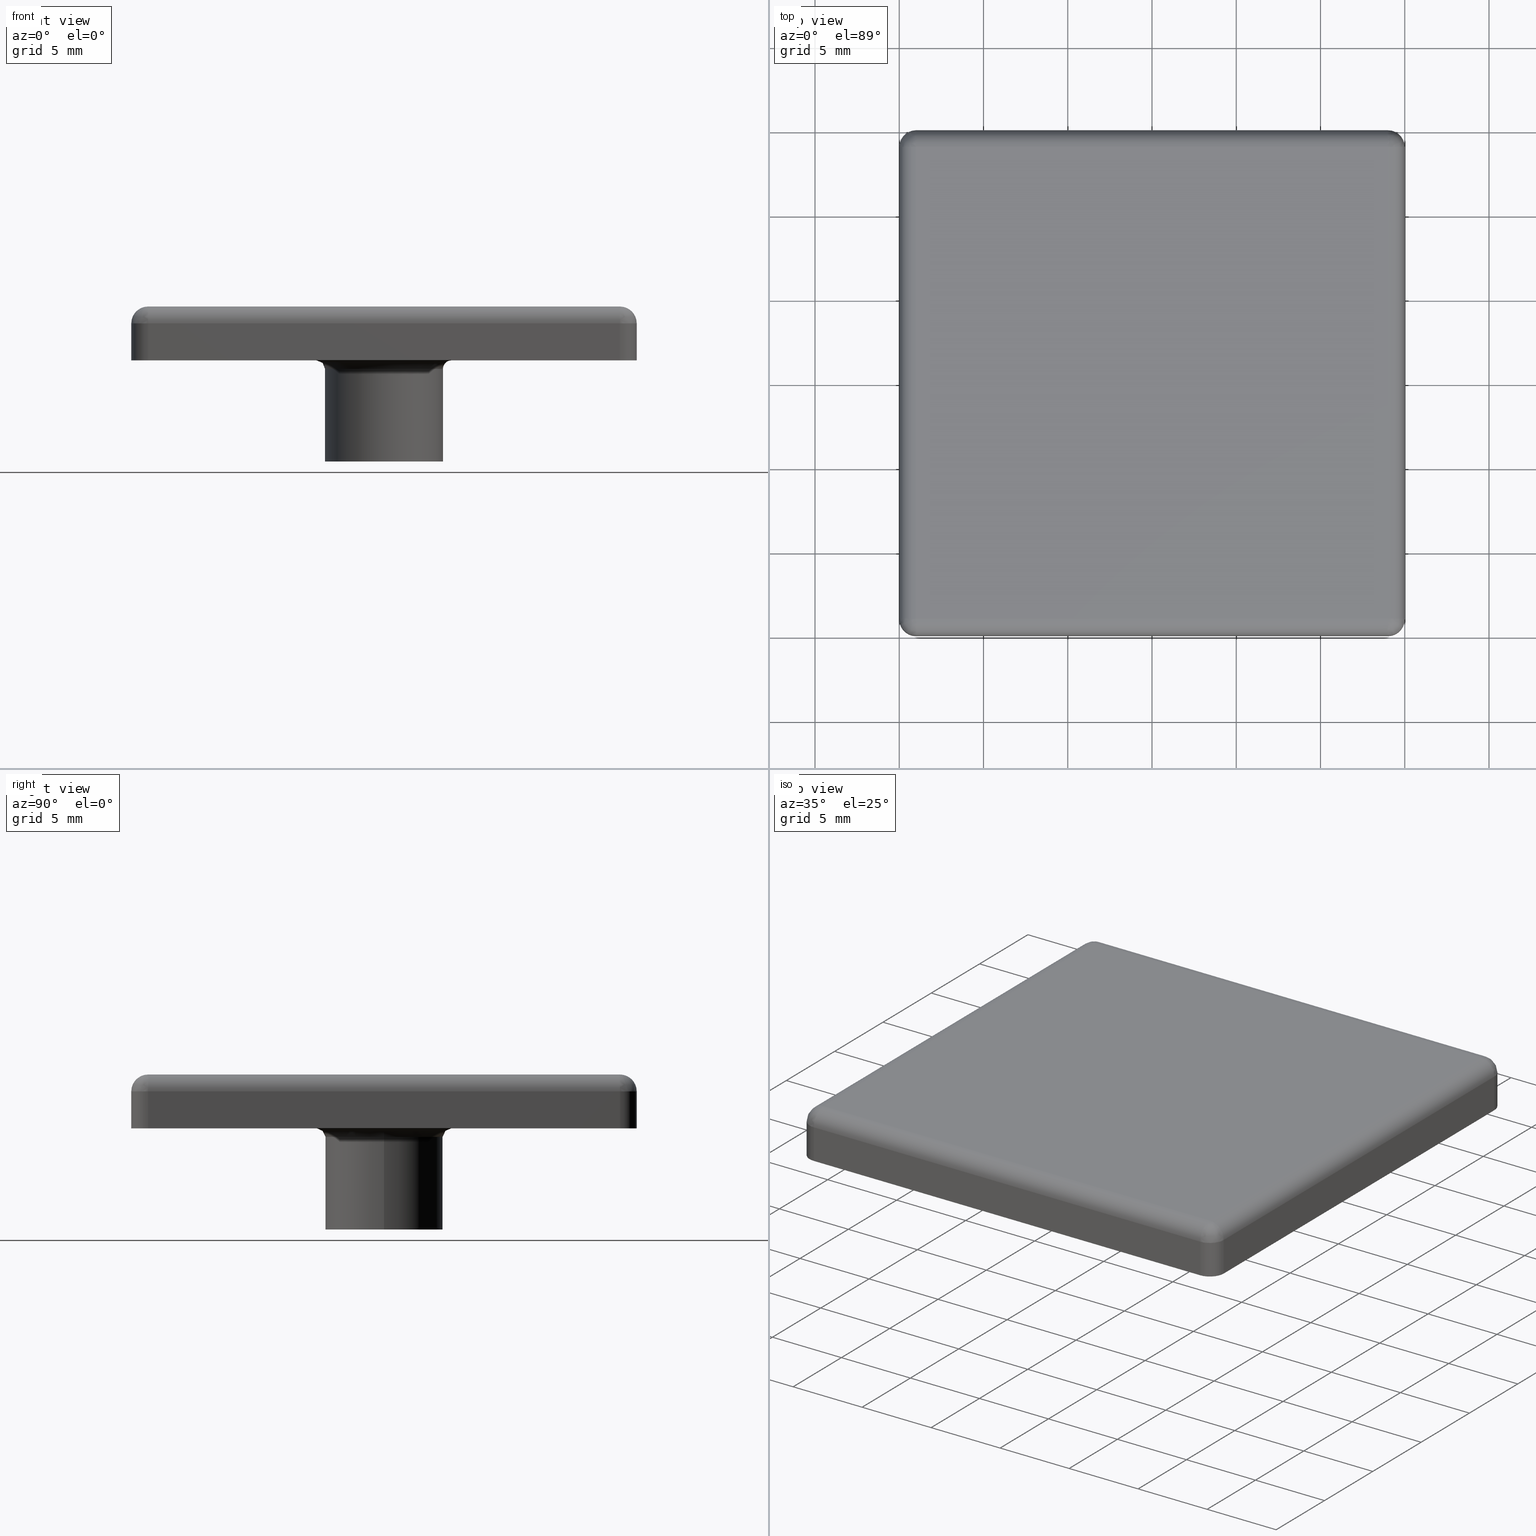
[diagram: canonical four-view strip — front | top / right | iso, engineering-drawing reading convention]
A machine part, canonical four-view strip (front | top / right | iso — engineering-drawing reading convention). The complete STEP part file that produces these views, byte-faithful:
ISO-10303-21;
HEADER;
/****************************************************************
 * Generated by software with PDE/Lib inside                    *
 * PDElib Version v4.4, created Mon 02/23/2004                  *
 * International Technegroup Inc. (www.iti-oh.com)              *
 ****************************************************************/
FILE_DESCRIPTION(('STEP AP203'),'2;1');
FILE_NAME('18.012.00.stp','2011-09-08T18:05:19',(''),(''),'2009.3.110','THINKDESIGN','');
FILE_SCHEMA(('CONFIG_CONTROL_DESIGN'));
ENDSEC;
DATA;
#2=CARTESIAN_POINT('',(14.0,14.000000000033310,0.0));
#3=DIRECTION('',(0.0,0.0,-1.0));
#4=DIRECTION('',(0.0,1.0,0.0));
#5=AXIS2_PLACEMENT_3D('',#2,#3,#4);
#6=CYLINDRICAL_SURFACE('',#5,1.0);
#7=CARTESIAN_POINT('',(14.0,15.000000000033310,0.0));
#8=VERTEX_POINT('',#7);
#9=CARTESIAN_POINT('',(14.0,15.000000000033310,2.200000000000000));
#10=VERTEX_POINT('',#9);
#11=CARTESIAN_POINT('',(14.0,15.000000000033310,0.0));
#12=DIRECTION('',(0.0,0.0,1.0));
#13=VECTOR('',#12,2.200000000000000);
#14=LINE('',#11,#13);
#15=EDGE_CURVE('',#8,#10,#14,.T.);
#16=ORIENTED_EDGE('',*,*,#15,.T.);
#17=CARTESIAN_POINT('',(15.0,14.000000000033310,2.200000000000000));
#18=VERTEX_POINT('',#17);
#19=CARTESIAN_POINT('',(14.0,14.000000000033310,2.200000000000000));
#20=DIRECTION('',(0.0,0.0,-1.0));
#21=DIRECTION('',(0.0,1.0,0.0));
#22=AXIS2_PLACEMENT_3D('',#19,#20,#21);
#23=CIRCLE('',#22,1.0);
#24=EDGE_CURVE('',#10,#18,#23,.T.);
#25=ORIENTED_EDGE('',*,*,#24,.T.);
#26=CARTESIAN_POINT('',(15.0,14.000000000033310,0.0));
#27=VERTEX_POINT('',#26);
#28=CARTESIAN_POINT('',(15.0,14.000000000033310,0.0));
#29=DIRECTION('',(0.0,0.0,1.0));
#30=VECTOR('',#29,2.200000000000000);
#31=LINE('',#28,#30);
#32=EDGE_CURVE('',#27,#18,#31,.T.);
#33=ORIENTED_EDGE('',*,*,#32,.F.);
#34=CARTESIAN_POINT('',(14.0,14.000000000033310,0.0));
#35=DIRECTION('',(0.0,0.0,-1.0));
#36=DIRECTION('',(0.0,1.0,0.0));
#37=AXIS2_PLACEMENT_3D('',#34,#35,#36);
#38=CIRCLE('',#37,1.0);
#39=EDGE_CURVE('',#8,#27,#38,.T.);
#40=ORIENTED_EDGE('',*,*,#39,.F.);
#41=EDGE_LOOP('',(#16,#25,#33,#40));
#42=FACE_OUTER_BOUND('',#41,.T.);
#43=ADVANCED_FACE('',(#42),#6,.T.);
#44=CARTESIAN_POINT('',(-18.000001016313220,-18.000001016273252,3.200000000000000));
#45=DIRECTION('',(0.0,0.0,1.0));
#46=DIRECTION('',(1.0,0.0,0.0));
#47=AXIS2_PLACEMENT_3D('',#44,#45,#46);
#48=PLANE('',#47);
#49=CARTESIAN_POINT('',(14.0,-13.999999999966697,3.200000000000000));
#50=VERTEX_POINT('',#49);
#51=CARTESIAN_POINT('',(14.0,14.000000000033310,3.200000000000000));
#52=VERTEX_POINT('',#51);
#53=CARTESIAN_POINT('',(14.0,-13.999999999966697,3.200000000000000));
#54=DIRECTION('',(0.0,1.0,0.0));
#55=VECTOR('',#54,28.000000000000007);
#56=LINE('',#53,#55);
#57=EDGE_CURVE('',#50,#52,#56,.T.);
#58=ORIENTED_EDGE('',*,*,#57,.T.);
#59=CARTESIAN_POINT('',(-13.999999999999996,14.000000000033303,3.200000000000000));
#60=VERTEX_POINT('',#59);
#61=CARTESIAN_POINT('',(14.0,14.000000000033310,3.200000000000000));
#62=DIRECTION('',(-1.0,0.0,0.0));
#63=VECTOR('',#62,28.0);
#64=LINE('',#61,#63);
#65=EDGE_CURVE('',#52,#60,#64,.T.);
#66=ORIENTED_EDGE('',*,*,#65,.T.);
#67=CARTESIAN_POINT('',(-14.0,-13.999999999966697,3.200000000000000));
#68=VERTEX_POINT('',#67);
#69=CARTESIAN_POINT('',(-13.999999999999996,14.000000000033303,3.200000000000000));
#70=DIRECTION('',(0.0,-1.0,0.0));
#71=VECTOR('',#70,28.0);
#72=LINE('',#69,#71);
#73=EDGE_CURVE('',#60,#68,#72,.T.);
#74=ORIENTED_EDGE('',*,*,#73,.T.);
#75=CARTESIAN_POINT('',(-14.0,-13.999999999966697,3.200000000000000));
#76=DIRECTION('',(1.0,0.0,0.0));
#77=VECTOR('',#76,28.0);
#78=LINE('',#75,#77);
#79=EDGE_CURVE('',#68,#50,#78,.T.);
#80=ORIENTED_EDGE('',*,*,#79,.T.);
#81=EDGE_LOOP('',(#58,#66,#74,#80));
#82=FACE_OUTER_BOUND('',#81,.T.);
#83=ADVANCED_FACE('',(#82),#48,.T.);
#84=CARTESIAN_POINT('',(15.0,15.000000000033310,0.0));
#85=DIRECTION('',(0.0,1.0,0.0));
#86=DIRECTION('',(-1.0,0.0,0.0));
#87=AXIS2_PLACEMENT_3D('',#84,#85,#86);
#88=PLANE('',#87);
#89=CARTESIAN_POINT('',(-13.999999999999996,15.000000000033303,0.0));
#90=VERTEX_POINT('',#89);
#91=CARTESIAN_POINT('',(14.0,15.000000000033310,0.0));
#92=DIRECTION('',(-1.0,0.0,0.0));
#93=VECTOR('',#92,27.999999999999996);
#94=LINE('',#91,#93);
#95=EDGE_CURVE('',#8,#90,#94,.T.);
#96=ORIENTED_EDGE('',*,*,#95,.T.);
#97=CARTESIAN_POINT('',(-13.999999999999996,15.000000000033303,2.200000000000000));
#98=VERTEX_POINT('',#97);
#99=CARTESIAN_POINT('',(-13.999999999999996,15.000000000033303,0.0));
#100=DIRECTION('',(0.0,0.0,1.0));
#101=VECTOR('',#100,2.200000000000000);
#102=LINE('',#99,#101);
#103=EDGE_CURVE('',#90,#98,#102,.T.);
#104=ORIENTED_EDGE('',*,*,#103,.T.);
#105=CARTESIAN_POINT('',(14.0,15.000000000033310,2.200000000000000));
#106=DIRECTION('',(-1.0,0.0,0.0));
#107=VECTOR('',#106,27.999999999999996);
#108=LINE('',#105,#107);
#109=EDGE_CURVE('',#10,#98,#108,.T.);
#110=ORIENTED_EDGE('',*,*,#109,.F.);
#111=ORIENTED_EDGE('',*,*,#15,.F.);
#112=EDGE_LOOP('',(#96,#104,#110,#111));
#113=FACE_OUTER_BOUND('',#112,.T.);
#114=ADVANCED_FACE('',(#113),#88,.T.);
#115=CARTESIAN_POINT('',(-13.999999999999996,14.000000000033303,0.0));
#116=DIRECTION('',(0.0,0.0,-1.0));
#117=DIRECTION('',(-1.0,0.0,0.0));
#118=AXIS2_PLACEMENT_3D('',#115,#116,#117);
#119=CYLINDRICAL_SURFACE('',#118,1.0);
#120=CARTESIAN_POINT('',(-14.999999999999996,14.000000000033303,0.0));
#121=VERTEX_POINT('',#120);
#122=CARTESIAN_POINT('',(-14.999999999999996,14.000000000033303,2.200000000000000));
#123=VERTEX_POINT('',#122);
#124=CARTESIAN_POINT('',(-14.999999999999996,14.000000000033303,0.0));
#125=DIRECTION('',(0.0,0.0,1.0));
#126=VECTOR('',#125,2.200000000000000);
#127=LINE('',#124,#126);
#128=EDGE_CURVE('',#121,#123,#127,.T.);
#129=ORIENTED_EDGE('',*,*,#128,.T.);
#130=CARTESIAN_POINT('',(-13.999999999999996,14.000000000033303,2.200000000000000));
#131=DIRECTION('',(0.0,0.0,-1.0));
#132=DIRECTION('',(-1.0,0.0,0.0));
#133=AXIS2_PLACEMENT_3D('',#130,#131,#132);
#134=CIRCLE('',#133,1.0);
#135=EDGE_CURVE('',#123,#98,#134,.T.);
#136=ORIENTED_EDGE('',*,*,#135,.T.);
#137=ORIENTED_EDGE('',*,*,#103,.F.);
#138=CARTESIAN_POINT('',(-13.999999999999996,14.000000000033303,0.0));
#139=DIRECTION('',(0.0,0.0,-1.0));
#140=DIRECTION('',(-1.0,0.0,0.0));
#141=AXIS2_PLACEMENT_3D('',#138,#139,#140);
#142=CIRCLE('',#141,1.0);
#143=EDGE_CURVE('',#121,#90,#142,.T.);
#144=ORIENTED_EDGE('',*,*,#143,.F.);
#145=EDGE_LOOP('',(#129,#136,#137,#144));
#146=FACE_OUTER_BOUND('',#145,.T.);
#147=ADVANCED_FACE('',(#146),#119,.T.);
#148=CARTESIAN_POINT('',(-14.999999999999996,15.000000000033303,0.0));
#149=DIRECTION('',(-1.0,0.0,0.0));
#150=DIRECTION('',(0.0,-1.0,0.0));
#151=AXIS2_PLACEMENT_3D('',#148,#149,#150);
#152=PLANE('',#151);
#153=CARTESIAN_POINT('',(-15.0,-13.999999999966697,0.0));
#154=VERTEX_POINT('',#153);
#155=CARTESIAN_POINT('',(-14.999999999999996,14.000000000033303,0.0));
#156=DIRECTION('',(0.0,-1.0,0.0));
#157=VECTOR('',#156,28.0);
#158=LINE('',#155,#157);
#159=EDGE_CURVE('',#121,#154,#158,.T.);
#160=ORIENTED_EDGE('',*,*,#159,.T.);
#161=CARTESIAN_POINT('',(-15.0,-13.999999999966697,2.200000000000000));
#162=VERTEX_POINT('',#161);
#163=CARTESIAN_POINT('',(-15.0,-13.999999999966697,0.0));
#164=DIRECTION('',(0.0,0.0,1.0));
#165=VECTOR('',#164,2.200000000000000);
#166=LINE('',#163,#165);
#167=EDGE_CURVE('',#154,#162,#166,.T.);
#168=ORIENTED_EDGE('',*,*,#167,.T.);
#169=CARTESIAN_POINT('',(-14.999999999999996,14.000000000033303,2.200000000000000));
#170=DIRECTION('',(0.0,-1.0,0.0));
#171=VECTOR('',#170,28.0);
#172=LINE('',#169,#171);
#173=EDGE_CURVE('',#123,#162,#172,.T.);
#174=ORIENTED_EDGE('',*,*,#173,.F.);
#175=ORIENTED_EDGE('',*,*,#128,.F.);
#176=EDGE_LOOP('',(#160,#168,#174,#175));
#177=FACE_OUTER_BOUND('',#176,.T.);
#178=ADVANCED_FACE('',(#177),#152,.T.);
#179=CARTESIAN_POINT('',(-14.0,-13.999999999966697,0.0));
#180=DIRECTION('',(0.0,0.0,-1.0));
#181=DIRECTION('',(0.0,-1.0,0.0));
#182=AXIS2_PLACEMENT_3D('',#179,#180,#181);
#183=CYLINDRICAL_SURFACE('',#182,1.0);
#184=CARTESIAN_POINT('',(-14.0,-14.999999999966697,0.0));
#185=VERTEX_POINT('',#184);
#186=CARTESIAN_POINT('',(-14.0,-14.999999999966697,2.200000000000000));
#187=VERTEX_POINT('',#186);
#188=CARTESIAN_POINT('',(-14.0,-14.999999999966697,0.0));
#189=DIRECTION('',(0.0,0.0,1.0));
#190=VECTOR('',#189,2.200000000000000);
#191=LINE('',#188,#190);
#192=EDGE_CURVE('',#185,#187,#191,.T.);
#193=ORIENTED_EDGE('',*,*,#192,.T.);
#194=CARTESIAN_POINT('',(-14.0,-13.999999999966697,2.200000000000000));
#195=DIRECTION('',(0.0,0.0,-1.0));
#196=DIRECTION('',(0.0,-1.0,0.0));
#197=AXIS2_PLACEMENT_3D('',#194,#195,#196);
#198=CIRCLE('',#197,1.0);
#199=EDGE_CURVE('',#187,#162,#198,.T.);
#200=ORIENTED_EDGE('',*,*,#199,.T.);
#201=ORIENTED_EDGE('',*,*,#167,.F.);
#202=CARTESIAN_POINT('',(-14.0,-13.999999999966697,0.0));
#203=DIRECTION('',(0.0,0.0,-1.0));
#204=DIRECTION('',(0.0,-1.0,0.0));
#205=AXIS2_PLACEMENT_3D('',#202,#203,#204);
#206=CIRCLE('',#205,1.0);
#207=EDGE_CURVE('',#185,#154,#206,.T.);
#208=ORIENTED_EDGE('',*,*,#207,.F.);
#209=EDGE_LOOP('',(#193,#200,#201,#208));
#210=FACE_OUTER_BOUND('',#209,.T.);
#211=ADVANCED_FACE('',(#210),#183,.T.);
#212=CARTESIAN_POINT('',(-15.0,-14.999999999966697,0.0));
#213=DIRECTION('',(0.0,-1.0,0.0));
#214=DIRECTION('',(1.0,0.0,0.0));
#215=AXIS2_PLACEMENT_3D('',#212,#213,#214);
#216=PLANE('',#215);
#217=CARTESIAN_POINT('',(14.0,-14.999999999966697,0.0));
#218=VERTEX_POINT('',#217);
#219=CARTESIAN_POINT('',(-14.0,-14.999999999966697,0.0));
#220=DIRECTION('',(1.0,0.0,0.0));
#221=VECTOR('',#220,28.0);
#222=LINE('',#219,#221);
#223=EDGE_CURVE('',#185,#218,#222,.T.);
#224=ORIENTED_EDGE('',*,*,#223,.T.);
#225=CARTESIAN_POINT('',(14.0,-14.999999999966697,2.200000000000000));
#226=VERTEX_POINT('',#225);
#227=CARTESIAN_POINT('',(14.0,-14.999999999966697,0.0));
#228=DIRECTION('',(0.0,0.0,1.0));
#229=VECTOR('',#228,2.200000000000000);
#230=LINE('',#227,#229);
#231=EDGE_CURVE('',#218,#226,#230,.T.);
#232=ORIENTED_EDGE('',*,*,#231,.T.);
#233=CARTESIAN_POINT('',(-14.0,-14.999999999966697,2.200000000000000));
#234=DIRECTION('',(1.0,0.0,0.0));
#235=VECTOR('',#234,28.0);
#236=LINE('',#233,#235);
#237=EDGE_CURVE('',#187,#226,#236,.T.);
#238=ORIENTED_EDGE('',*,*,#237,.F.);
#239=ORIENTED_EDGE('',*,*,#192,.F.);
#240=EDGE_LOOP('',(#224,#232,#238,#239));
#241=FACE_OUTER_BOUND('',#240,.T.);
#242=ADVANCED_FACE('',(#241),#216,.T.);
#243=CARTESIAN_POINT('',(14.0,-13.999999999966697,0.0));
#244=DIRECTION('',(0.0,0.0,-1.0));
#245=DIRECTION('',(1.0,0.0,0.0));
#246=AXIS2_PLACEMENT_3D('',#243,#244,#245);
#247=CYLINDRICAL_SURFACE('',#246,1.0);
#248=CARTESIAN_POINT('',(15.0,-13.999999999966697,0.0));
#249=VERTEX_POINT('',#248);
#250=CARTESIAN_POINT('',(15.0,-13.999999999966697,2.200000000000000));
#251=VERTEX_POINT('',#250);
#252=CARTESIAN_POINT('',(15.0,-13.999999999966697,0.0));
#253=DIRECTION('',(0.0,0.0,1.0));
#254=VECTOR('',#253,2.200000000000000);
#255=LINE('',#252,#254);
#256=EDGE_CURVE('',#249,#251,#255,.T.);
#257=ORIENTED_EDGE('',*,*,#256,.T.);
#258=CARTESIAN_POINT('',(14.0,-13.999999999966697,2.200000000000000));
#259=DIRECTION('',(0.0,0.0,-1.0));
#260=DIRECTION('',(1.0,0.0,0.0));
#261=AXIS2_PLACEMENT_3D('',#258,#259,#260);
#262=CIRCLE('',#261,1.0);
#263=EDGE_CURVE('',#251,#226,#262,.T.);
#264=ORIENTED_EDGE('',*,*,#263,.T.);
#265=ORIENTED_EDGE('',*,*,#231,.F.);
#266=CARTESIAN_POINT('',(14.0,-13.999999999966697,0.0));
#267=DIRECTION('',(0.0,0.0,-1.0));
#268=DIRECTION('',(1.0,0.0,0.0));
#269=AXIS2_PLACEMENT_3D('',#266,#267,#268);
#270=CIRCLE('',#269,1.0);
#271=EDGE_CURVE('',#249,#218,#270,.T.);
#272=ORIENTED_EDGE('',*,*,#271,.F.);
#273=EDGE_LOOP('',(#257,#264,#265,#272));
#274=FACE_OUTER_BOUND('',#273,.T.);
#275=ADVANCED_FACE('',(#274),#247,.T.);
#276=CARTESIAN_POINT('',(15.0,-14.999999999966697,0.0));
#277=DIRECTION('',(1.0,0.0,0.0));
#278=DIRECTION('',(0.0,1.0,0.0));
#279=AXIS2_PLACEMENT_3D('',#276,#277,#278);
#280=PLANE('',#279);
#281=CARTESIAN_POINT('',(15.0,-13.999999999966697,0.0));
#282=DIRECTION('',(0.0,1.0,0.0));
#283=VECTOR('',#282,28.000000000000007);
#284=LINE('',#281,#283);
#285=EDGE_CURVE('',#249,#27,#284,.T.);
#286=ORIENTED_EDGE('',*,*,#285,.T.);
#287=ORIENTED_EDGE('',*,*,#32,.T.);
#288=CARTESIAN_POINT('',(15.0,-13.999999999966697,2.200000000000000));
#289=DIRECTION('',(0.0,1.0,0.0));
#290=VECTOR('',#289,28.000000000000007);
#291=LINE('',#288,#290);
#292=EDGE_CURVE('',#251,#18,#291,.T.);
#293=ORIENTED_EDGE('',*,*,#292,.F.);
#294=ORIENTED_EDGE('',*,*,#256,.F.);
#295=EDGE_LOOP('',(#286,#287,#293,#294));
#296=FACE_OUTER_BOUND('',#295,.T.);
#297=ADVANCED_FACE('',(#296),#280,.T.);
#298=CARTESIAN_POINT('',(14.0,-13.999999999966697,2.200000000000000));
#299=DIRECTION('',(0.0,-1.0,0.0));
#300=DIRECTION('',(1.0,0.0,0.0));
#301=AXIS2_PLACEMENT_3D('',#298,#299,#300);
#302=CYLINDRICAL_SURFACE('',#301,1.0);
#303=ORIENTED_EDGE('',*,*,#292,.T.);
#304=CARTESIAN_POINT('',(14.0,14.000000000033317,2.200000000000000));
#305=DIRECTION('',(0.0,1.0,0.0));
#306=DIRECTION('',(1.0,0.0,0.0));
#307=AXIS2_PLACEMENT_3D('',#304,#305,#306);
#308=CIRCLE('',#307,1.0);
#309=EDGE_CURVE('',#52,#18,#308,.T.);
#310=ORIENTED_EDGE('',*,*,#309,.F.);
#311=ORIENTED_EDGE('',*,*,#57,.F.);
#312=CARTESIAN_POINT('',(14.0,-13.999999999966697,2.200000000000000));
#313=DIRECTION('',(0.0,-1.0,0.0));
#314=DIRECTION('',(1.0,0.0,0.0));
#315=AXIS2_PLACEMENT_3D('',#312,#313,#314);
#316=CIRCLE('',#315,1.0);
#317=EDGE_CURVE('',#251,#50,#316,.T.);
#318=ORIENTED_EDGE('',*,*,#317,.F.);
#319=EDGE_LOOP('',(#303,#310,#311,#318));
#320=FACE_OUTER_BOUND('',#319,.T.);
#321=ADVANCED_FACE('',(#320),#302,.T.);
#322=CARTESIAN_POINT('',(15.0,-13.999999999966697,2.200000000000000));
#323=CARTESIAN_POINT('',(15.0,-13.999999999966697,2.330060214677419));
#324=CARTESIAN_POINT('',(14.947961223884224,-13.999999999966697,2.593027817343275));
#325=CARTESIAN_POINT('',(14.725412911472942,-13.999999999966690,2.925412911472947));
#326=CARTESIAN_POINT('',(14.393027817343278,-13.999999999966700,3.147961223884222));
#327=CARTESIAN_POINT('',(14.130060214677419,-13.999999999966697,3.200000000000000));
#328=CARTESIAN_POINT('',(14.0,-13.999999999966697,3.200000000000000));
#329=CARTESIAN_POINT('',(15.000000000000002,-14.032711782851642,2.200000000000000));
#330=CARTESIAN_POINT('',(15.000000000000002,-14.032711782851642,2.330060214677419));
#331=CARTESIAN_POINT('',(14.947961223884247,-14.031009501705746,2.593027817343276));
#332=CARTESIAN_POINT('',(14.725412911472938,-14.023729549628728,2.925412911472946));
#333=CARTESIAN_POINT('',(14.393027817343233,-14.012856640595377,3.147961223884221));
#334=CARTESIAN_POINT('',(14.130060214677329,-14.004254501471195,3.200000000000000));
#335=CARTESIAN_POINT('',(14.0,-13.999999999966697,3.200000000000000));
#336=CARTESIAN_POINT('',(14.996785252302949,-14.098183197912904,2.200000000000000));
#337=CARTESIAN_POINT('',(14.996785252302949,-14.098183197912904,2.330060214677419));
#338=CARTESIAN_POINT('',(14.944913767722834,-14.093073864456663,2.593027817343276));
#339=CARTESIAN_POINT('',(14.723080891986374,-14.071223359446572,2.925412911472946));
#340=CARTESIAN_POINT('',(14.391764332072615,-14.038588727955283,3.147961223884220));
#341=CARTESIAN_POINT('',(14.129642103901848,-14.012769727769294,3.200000000000000));
#342=CARTESIAN_POINT('',(13.999999999999996,-13.999999999966693,3.199999999999999));
#343=CARTESIAN_POINT('',(14.977563135780079,-14.227719504010171,2.200000000000001));
#344=CARTESIAN_POINT('',(14.977563135780079,-14.227719504010171,2.330060214677420));
#345=CARTESIAN_POINT('',(14.926691946618188,-14.215869259722050,2.593027817343276));
#346=CARTESIAN_POINT('',(14.709136920474844,-14.165190668394047,2.925412911472948));
#347=CARTESIAN_POINT('',(14.384209505570885,-14.089500099607395,3.147961223884224));
#348=CARTESIAN_POINT('',(14.127142071300266,-14.029617247548831,3.200000000000002));
#349=CARTESIAN_POINT('',(14.000000000000004,-13.999999999966704,3.200000000000002));
#350=CARTESIAN_POINT('',(14.911114266208468,-14.447339584708111,2.199999999999999));
#351=CARTESIAN_POINT('',(14.911114266208468,-14.447339584708111,2.330060214677418));
#352=CARTESIAN_POINT('',(14.863700994893355,-14.424060580210034,2.593027817343275));
#353=CARTESIAN_POINT('',(14.660934052534817,-14.324505910551050,2.925412911472944));
#354=CARTESIAN_POINT('',(14.358093251398238,-14.175816900568874,3.147961223884217));
#355=CARTESIAN_POINT('',(14.118499717058747,-14.058181082391865,3.199999999999998));
#356=CARTESIAN_POINT('',(13.999999999999991,-13.999999999966688,3.199999999999998));
#357=CARTESIAN_POINT('',(14.725663422443688,-14.725663422410378,2.199999999999999));
#358=CARTESIAN_POINT('',(14.725663422443688,-14.725663422410378,2.330060214677419));
#359=CARTESIAN_POINT('',(14.687900786067733,-14.687900786034426,2.593027817343276));
#360=CARTESIAN_POINT('',(14.526405616024288,-14.526405615990988,2.925412911472947));
#361=CARTESIAN_POINT('',(14.285205911048898,-14.285205911015588,3.147961223884224));
#362=CARTESIAN_POINT('',(14.094379940506563,-14.094379940473271,3.199999999999999));
#363=CARTESIAN_POINT('',(14.0,-13.999999999966695,3.199999999999999));
#364=CARTESIAN_POINT('',(14.447339584741423,-14.911114266175177,2.200000000000001));
#365=CARTESIAN_POINT('',(14.447339584741423,-14.911114266175177,2.330060214677420));
#366=CARTESIAN_POINT('',(14.424060580243339,-14.863700994860057,2.593027817343277));
#367=CARTESIAN_POINT('',(14.324505910584371,-14.660934052501517,2.925412911472947));
#368=CARTESIAN_POINT('',(14.175816900602175,-14.358093251364938,3.147961223884220));
#369=CARTESIAN_POINT('',(14.058181082425181,-14.118499717025434,3.200000000000002));
#370=CARTESIAN_POINT('',(14.000000000000002,-13.999999999966700,3.200000000000001));
#371=CARTESIAN_POINT('',(14.227719504043471,-14.977563135746768,2.200000000000000));
#372=CARTESIAN_POINT('',(14.227719504043471,-14.977563135746768,2.330060214677419));
#373=CARTESIAN_POINT('',(14.215869259755360,-14.926691946584880,2.593027817343275));
#374=CARTESIAN_POINT('',(14.165190668427341,-14.709136920441539,2.925412911472947));
#375=CARTESIAN_POINT('',(14.089500099640702,-14.384209505537591,3.147961223884223));
#376=CARTESIAN_POINT('',(14.029617247582127,-14.127142071266979,3.200000000000000));
#377=CARTESIAN_POINT('',(14.000000000000002,-13.999999999966693,3.200000000000000));
#378=CARTESIAN_POINT('',(14.098183197946211,-14.996785252269651,2.200000000000000));
#379=CARTESIAN_POINT('',(14.098183197946211,-14.996785252269651,2.330060214677419));
#380=CARTESIAN_POINT('',(14.093073864489959,-14.944913767689547,2.593027817343276));
#381=CARTESIAN_POINT('',(14.071223359479879,-14.723080891953064,2.925412911472947));
#382=CARTESIAN_POINT('',(14.038588727988579,-14.391764332039291,3.147961223884221));
#383=CARTESIAN_POINT('',(14.012769727802603,-14.129642103868512,3.200000000000000));
#384=CARTESIAN_POINT('',(14.0,-13.999999999966699,3.200000000000000));
#385=CARTESIAN_POINT('',(14.032711782884945,-14.999999999966695,2.200000000000000));
#386=CARTESIAN_POINT('',(14.032711782884945,-14.999999999966695,2.330060214677419));
#387=CARTESIAN_POINT('',(14.031009501739051,-14.947961223850916,2.593027817343276));
#388=CARTESIAN_POINT('',(14.023729549662033,-14.725412911439671,2.925412911472946));
#389=CARTESIAN_POINT('',(14.012856640628680,-14.393027817309987,3.147961223884221));
#390=CARTESIAN_POINT('',(14.004254501504498,-14.130060214644098,3.200000000000000));
#391=CARTESIAN_POINT('',(14.0,-13.999999999966697,3.200000000000000));
#392=CARTESIAN_POINT('',(14.0,-14.999999999966697,2.200000000000000));
#393=CARTESIAN_POINT('',(14.0,-14.999999999966697,2.330060214677419));
#394=CARTESIAN_POINT('',(14.000000000000004,-14.947961223850918,2.593027817343275));
#395=CARTESIAN_POINT('',(13.999999999999995,-14.725412911439642,2.925412911472947));
#396=CARTESIAN_POINT('',(14.000000000000004,-14.393027817309971,3.147961223884222));
#397=CARTESIAN_POINT('',(14.0,-14.130060214644116,3.200000000000000));
#398=CARTESIAN_POINT('',(14.0,-13.999999999966697,3.200000000000000));
#399=B_SPLINE_SURFACE_WITH_KNOTS('',3,3,((#322,#329,#336,#343,#350,#357,#364,#371,#378,#385,#392),(#323,#330,#337,#344,#351,#358,#365,#372,#379,#386,#393),(#324,#331,#338,#345,#352,#359,#366,#373,#380,#387,#394),(#325,#332,#339,#346,#353,#360,#367,#374,#381,#388,#395),(#326,#333,#340,#347,#354,#361,#368,#375,#382,#389,#396),(#327,#334,#341,#348,#355,#362,#369,#376,#383,#390,#397),(#328,#335,#342,#349,#356,#363,#370,#377,#384,#391,#398)),.UNSPECIFIED.,.F.,.F.,.U.,(4,1,1,1,4),(4,1,1,1,1,1,1,1,4),(0.0,0.390180644032257,0.780361288064512,1.170541932096770,1.560722576129026),(0.0,0.059149506252083,0.118299012504166,0.236455528666887,0.471630649150759,0.706805769634630,0.824962285797351,0.884111792049434,0.943261298301517),.UNSPECIFIED.);
#400=ORIENTED_EDGE('',*,*,#317,.T.);
#401=CARTESIAN_POINT('',(14.0,-13.999999999966697,2.200000000000000));
#402=DIRECTION('',(1.0,0.0,0.0));
#403=DIRECTION('',(0.0,-1.0,0.0));
#404=AXIS2_PLACEMENT_3D('',#401,#402,#403);
#405=CIRCLE('',#404,1.0);
#406=EDGE_CURVE('',#50,#226,#405,.T.);
#407=ORIENTED_EDGE('',*,*,#406,.T.);
#408=ORIENTED_EDGE('',*,*,#263,.F.);
#409=EDGE_LOOP('',(#400,#407,#408));
#410=FACE_OUTER_BOUND('',#409,.T.);
#411=ADVANCED_FACE('',(#410),#399,.T.);
#412=CARTESIAN_POINT('',(-14.0,-13.999999999966697,2.200000000000000));
#413=DIRECTION('',(-1.0,0.0,0.0));
#414=DIRECTION('',(0.0,-1.0,0.0));
#415=AXIS2_PLACEMENT_3D('',#412,#413,#414);
#416=CYLINDRICAL_SURFACE('',#415,1.0);
#417=ORIENTED_EDGE('',*,*,#406,.F.);
#418=ORIENTED_EDGE('',*,*,#79,.F.);
#419=CARTESIAN_POINT('',(-14.0,-13.999999999966697,2.200000000000000));
#420=DIRECTION('',(-1.0,0.0,0.0));
#421=DIRECTION('',(0.0,-1.0,0.0));
#422=AXIS2_PLACEMENT_3D('',#419,#420,#421);
#423=CIRCLE('',#422,1.0);
#424=EDGE_CURVE('',#187,#68,#423,.T.);
#425=ORIENTED_EDGE('',*,*,#424,.F.);
#426=ORIENTED_EDGE('',*,*,#237,.T.);
#427=EDGE_LOOP('',(#417,#418,#425,#426));
#428=FACE_OUTER_BOUND('',#427,.T.);
#429=ADVANCED_FACE('',(#428),#416,.T.);
#430=CARTESIAN_POINT('',(-14.0,-14.999999999966697,2.200000000000000));
#431=CARTESIAN_POINT('',(-14.0,-14.999999999966697,2.330060214677419));
#432=CARTESIAN_POINT('',(-14.000000000000004,-14.947961223850918,2.593027817343275));
#433=CARTESIAN_POINT('',(-13.999999999999995,-14.725412911439642,2.925412911472947));
#434=CARTESIAN_POINT('',(-14.000000000000004,-14.393027817309971,3.147961223884222));
#435=CARTESIAN_POINT('',(-14.0,-14.130060214644116,3.200000000000000));
#436=CARTESIAN_POINT('',(-14.0,-13.999999999966697,3.200000000000000));
#437=CARTESIAN_POINT('',(-14.032711782884945,-14.999999999966695,2.200000000000000));
#438=CARTESIAN_POINT('',(-14.032711782884945,-14.999999999966695,2.330060214677419));
#439=CARTESIAN_POINT('',(-14.031009501739051,-14.947961223850916,2.593027817343276));
#440=CARTESIAN_POINT('',(-14.023729549662033,-14.725412911439671,2.925412911472946));
#441=CARTESIAN_POINT('',(-14.012856640628680,-14.393027817309987,3.147961223884221));
#442=CARTESIAN_POINT('',(-14.004254501504498,-14.130060214644098,3.200000000000000));
#443=CARTESIAN_POINT('',(-14.0,-13.999999999966697,3.200000000000000));
#444=CARTESIAN_POINT('',(-14.098183197946208,-14.996785252269646,2.200000000000000));
#445=CARTESIAN_POINT('',(-14.098183197946208,-14.996785252269646,2.330060214677419));
#446=CARTESIAN_POINT('',(-14.093073864489956,-14.944913767689542,2.593027817343276));
#447=CARTESIAN_POINT('',(-14.071223359479879,-14.723080891953057,2.925412911472946));
#448=CARTESIAN_POINT('',(-14.038588727988580,-14.391764332039292,3.147961223884220));
#449=CARTESIAN_POINT('',(-14.012769727802596,-14.129642103868509,3.200000000000000));
#450=CARTESIAN_POINT('',(-13.999999999999996,-13.999999999966693,3.199999999999999));
#451=CARTESIAN_POINT('',(-14.227719504043476,-14.977563135746774,2.200000000000001));
#452=CARTESIAN_POINT('',(-14.227719504043476,-14.977563135746774,2.330060214677420));
#453=CARTESIAN_POINT('',(-14.215869259755365,-14.926691946584885,2.593027817343276));
#454=CARTESIAN_POINT('',(-14.165190668427345,-14.709136920441550,2.925412911472948));
#455=CARTESIAN_POINT('',(-14.089500099640704,-14.384209505537592,3.147961223884224));
#456=CARTESIAN_POINT('',(-14.029617247582134,-14.127142071266984,3.200000000000002));
#457=CARTESIAN_POINT('',(-14.000000000000004,-13.999999999966704,3.200000000000002));
#458=CARTESIAN_POINT('',(-14.447339584741410,-14.911114266175165,2.199999999999999));
#459=CARTESIAN_POINT('',(-14.447339584741410,-14.911114266175165,2.330060214677418));
#460=CARTESIAN_POINT('',(-14.424060580243326,-14.863700994860048,2.593027817343275));
#461=CARTESIAN_POINT('',(-14.324505910584360,-14.660934052501503,2.925412911472944));
#462=CARTESIAN_POINT('',(-14.175816900602168,-14.358093251364933,3.147961223884217));
#463=CARTESIAN_POINT('',(-14.058181082425168,-14.118499717025426,3.199999999999998));
#464=CARTESIAN_POINT('',(-13.999999999999991,-13.999999999966688,3.199999999999998));
#465=CARTESIAN_POINT('',(-14.725663422443688,-14.725663422410381,2.199999999999999));
#466=CARTESIAN_POINT('',(-14.725663422443688,-14.725663422410381,2.330060214677419));
#467=CARTESIAN_POINT('',(-14.687900786067733,-14.687900786034430,2.593027817343276));
#468=CARTESIAN_POINT('',(-14.526405616024290,-14.526405615990992,2.925412911472947));
#469=CARTESIAN_POINT('',(-14.285205911048894,-14.285205911015584,3.147961223884224));
#470=CARTESIAN_POINT('',(-14.094379940506567,-14.094379940473271,3.199999999999999));
#471=CARTESIAN_POINT('',(-14.0,-13.999999999966695,3.199999999999999));
#472=CARTESIAN_POINT('',(-14.911114266208479,-14.447339584708120,2.200000000000001));
#473=CARTESIAN_POINT('',(-14.911114266208479,-14.447339584708120,2.330060214677420));
#474=CARTESIAN_POINT('',(-14.863700994893362,-14.424060580210043,2.593027817343277));
#475=CARTESIAN_POINT('',(-14.660934052534831,-14.324505910551062,2.925412911472947));
#476=CARTESIAN_POINT('',(-14.358093251398248,-14.175816900568879,3.147961223884220));
#477=CARTESIAN_POINT('',(-14.118499717058755,-14.058181082391878,3.200000000000002));
#478=CARTESIAN_POINT('',(-14.000000000000002,-13.999999999966700,3.200000000000001));
#479=CARTESIAN_POINT('',(-14.977563135780070,-14.227719504010166,2.200000000000000));
#480=CARTESIAN_POINT('',(-14.977563135780070,-14.227719504010166,2.330060214677419));
#481=CARTESIAN_POINT('',(-14.926691946618188,-14.215869259722043,2.593027817343275));
#482=CARTESIAN_POINT('',(-14.709136920474835,-14.165190668394041,2.925412911472947));
#483=CARTESIAN_POINT('',(-14.384209505570880,-14.089500099607392,3.147961223884223));
#484=CARTESIAN_POINT('',(-14.127142071300261,-14.029617247548826,3.200000000000000));
#485=CARTESIAN_POINT('',(-14.000000000000002,-13.999999999966693,3.200000000000000));
#486=CARTESIAN_POINT('',(-14.996785252302953,-14.098183197912910,2.200000000000000));
#487=CARTESIAN_POINT('',(-14.996785252302953,-14.098183197912910,2.330060214677419));
#488=CARTESIAN_POINT('',(-14.944913767722836,-14.093073864456667,2.593027817343276));
#489=CARTESIAN_POINT('',(-14.723080891986381,-14.071223359446574,2.925412911472947));
#490=CARTESIAN_POINT('',(-14.391764332072619,-14.038588727955283,3.147961223884221));
#491=CARTESIAN_POINT('',(-14.129642103901848,-14.012769727769298,3.200000000000000));
#492=CARTESIAN_POINT('',(-14.0,-13.999999999966699,3.200000000000000));
#493=CARTESIAN_POINT('',(-15.000000000000002,-14.032711782851642,2.200000000000000));
#494=CARTESIAN_POINT('',(-15.000000000000002,-14.032711782851642,2.330060214677419));
#495=CARTESIAN_POINT('',(-14.947961223884247,-14.031009501705746,2.593027817343276));
#496=CARTESIAN_POINT('',(-14.725412911472938,-14.023729549628728,2.925412911472946));
#497=CARTESIAN_POINT('',(-14.393027817343233,-14.012856640595377,3.147961223884221));
#498=CARTESIAN_POINT('',(-14.130060214677329,-14.004254501471195,3.200000000000000));
#499=CARTESIAN_POINT('',(-14.0,-13.999999999966697,3.200000000000000));
#500=CARTESIAN_POINT('',(-15.0,-13.999999999966697,2.200000000000000));
#501=CARTESIAN_POINT('',(-15.0,-13.999999999966697,2.330060214677419));
#502=CARTESIAN_POINT('',(-14.947961223884224,-13.999999999966697,2.593027817343275));
#503=CARTESIAN_POINT('',(-14.725412911472942,-13.999999999966690,2.925412911472947));
#504=CARTESIAN_POINT('',(-14.393027817343278,-13.999999999966700,3.147961223884222));
#505=CARTESIAN_POINT('',(-14.130060214677419,-13.999999999966697,3.200000000000000));
#506=CARTESIAN_POINT('',(-14.0,-13.999999999966697,3.200000000000000));
#507=B_SPLINE_SURFACE_WITH_KNOTS('',3,3,((#430,#437,#444,#451,#458,#465,#472,#479,#486,#493,#500),(#431,#438,#445,#452,#459,#466,#473,#480,#487,#494,#501),(#432,#439,#446,#453,#460,#467,#474,#481,#488,#495,#502),(#433,#440,#447,#454,#461,#468,#475,#482,#489,#496,#503),(#434,#441,#448,#455,#462,#469,#476,#483,#490,#497,#504),(#435,#442,#449,#456,#463,#470,#477,#484,#491,#498,#505),(#436,#443,#450,#457,#464,#471,#478,#485,#492,#499,#506)),.UNSPECIFIED.,.F.,.F.,.U.,(4,1,1,1,4),(4,1,1,1,1,1,1,1,4),(0.0,0.390180644032257,0.780361288064512,1.170541932096770,1.560722576129026),(0.0,0.059149506252083,0.118299012504166,0.236455528666887,0.471630649150759,0.706805769634630,0.824962285797351,0.884111792049434,0.943261298301517),.UNSPECIFIED.);
#508=ORIENTED_EDGE('',*,*,#424,.T.);
#509=CARTESIAN_POINT('',(-13.999999999999996,-13.999999999966697,2.200000000000000));
#510=DIRECTION('',(0.0,-1.0,0.0));
#511=DIRECTION('',(-1.0,0.0,0.0));
#512=AXIS2_PLACEMENT_3D('',#509,#510,#511);
#513=CIRCLE('',#512,1.0);
#514=EDGE_CURVE('',#68,#162,#513,.T.);
#515=ORIENTED_EDGE('',*,*,#514,.T.);
#516=ORIENTED_EDGE('',*,*,#199,.F.);
#517=EDGE_LOOP('',(#508,#515,#516));
#518=FACE_OUTER_BOUND('',#517,.T.);
#519=ADVANCED_FACE('',(#518),#507,.T.);
#520=CARTESIAN_POINT('',(-13.999999999999996,14.000000000033303,2.200000000000000));
#521=DIRECTION('',(0.0,1.0,0.0));
#522=DIRECTION('',(-1.0,0.0,0.0));
#523=AXIS2_PLACEMENT_3D('',#520,#521,#522);
#524=CYLINDRICAL_SURFACE('',#523,1.0);
#525=ORIENTED_EDGE('',*,*,#514,.F.);
#526=ORIENTED_EDGE('',*,*,#73,.F.);
#527=CARTESIAN_POINT('',(-13.999999999999996,14.000000000033303,2.200000000000000));
#528=DIRECTION('',(0.0,1.0,0.0));
#529=DIRECTION('',(-1.0,0.0,0.0));
#530=AXIS2_PLACEMENT_3D('',#527,#528,#529);
#531=CIRCLE('',#530,1.0);
#532=EDGE_CURVE('',#123,#60,#531,.T.);
#533=ORIENTED_EDGE('',*,*,#532,.F.);
#534=ORIENTED_EDGE('',*,*,#173,.T.);
#535=EDGE_LOOP('',(#525,#526,#533,#534));
#536=FACE_OUTER_BOUND('',#535,.T.);
#537=ADVANCED_FACE('',(#536),#524,.T.);
#538=CARTESIAN_POINT('',(-14.999999999999996,14.000000000033303,2.200000000000000));
#539=CARTESIAN_POINT('',(-14.999999999999996,14.000000000033303,2.330060214677419));
#540=CARTESIAN_POINT('',(-14.947961223884217,14.000000000033305,2.593027817343275));
#541=CARTESIAN_POINT('',(-14.725412911472940,14.000000000033300,2.925412911472947));
#542=CARTESIAN_POINT('',(-14.393027817343270,14.000000000033305,3.147961223884222));
#543=CARTESIAN_POINT('',(-14.130060214677416,14.000000000033303,3.200000000000000));
#544=CARTESIAN_POINT('',(-13.999999999999996,14.000000000033303,3.200000000000000));
#545=CARTESIAN_POINT('',(-15.0,14.032711782918248,2.200000000000000));
#546=CARTESIAN_POINT('',(-15.0,14.032711782918248,2.330060214677419));
#547=CARTESIAN_POINT('',(-14.947961223884207,14.031009501772353,2.593027817343276));
#548=CARTESIAN_POINT('',(-14.725412911472951,14.023729549695339,2.925412911472946));
#549=CARTESIAN_POINT('',(-14.393027817343309,14.012856640661981,3.147961223884221));
#550=CARTESIAN_POINT('',(-14.130060214677469,14.004254501537801,3.200000000000000));
#551=CARTESIAN_POINT('',(-13.999999999999995,14.000000000033303,3.200000000000000));
#552=CARTESIAN_POINT('',(-14.996785252302942,14.098183197979514,2.200000000000000));
#553=CARTESIAN_POINT('',(-14.996785252302942,14.098183197979514,2.330060214677419));
#554=CARTESIAN_POINT('',(-14.944913767722852,14.093073864523260,2.593027817343276));
#555=CARTESIAN_POINT('',(-14.723080891986363,14.071223359513187,2.925412911472946));
#556=CARTESIAN_POINT('',(-14.391764332072579,14.038588728021878,3.147961223884220));
#557=CARTESIAN_POINT('',(-14.129642103901777,14.012769727835902,3.200000000000000));
#558=CARTESIAN_POINT('',(-13.999999999999993,14.000000000033298,3.199999999999999));
#559=CARTESIAN_POINT('',(-14.977563135780075,14.227719504076774,2.200000000000001));
#560=CARTESIAN_POINT('',(-14.977563135780075,14.227719504076774,2.330060214677420));
#561=CARTESIAN_POINT('',(-14.926691946618170,14.215869259788658,2.593027817343276));
#562=CARTESIAN_POINT('',(-14.709136920474846,14.165190668460649,2.925412911472948));
#563=CARTESIAN_POINT('',(-14.384209505570899,14.089500099674016,3.147961223884224));
#564=CARTESIAN_POINT('',(-14.127142071300302,14.029617247615434,3.200000000000002));
#565=CARTESIAN_POINT('',(-14.000000000000002,14.000000000033310,3.200000000000002));
#566=CARTESIAN_POINT('',(-14.911114266208461,14.447339584774713,2.199999999999999));
#567=CARTESIAN_POINT('',(-14.911114266208461,14.447339584774713,2.330060214677418));
#568=CARTESIAN_POINT('',(-14.863700994893355,14.424060580276631,2.593027817343275));
#569=CARTESIAN_POINT('',(-14.660934052534817,14.324505910617667,2.925412911472944));
#570=CARTESIAN_POINT('',(-14.358093251398223,14.175816900635455,3.147961223884217));
#571=CARTESIAN_POINT('',(-14.118499717058715,14.058181082458477,3.199999999999998));
#572=CARTESIAN_POINT('',(-13.999999999999988,14.000000000033292,3.199999999999998));
#573=CARTESIAN_POINT('',(-14.725663422443684,14.725663422476989,2.199999999999999));
#574=CARTESIAN_POINT('',(-14.725663422443684,14.725663422476989,2.330060214677419));
#575=CARTESIAN_POINT('',(-14.687900786067729,14.687900786101041,2.593027817343276));
#576=CARTESIAN_POINT('',(-14.526405616024288,14.526405616057588,2.925412911472947));
#577=CARTESIAN_POINT('',(-14.285205911048894,14.285205911082208,3.147961223884224));
#578=CARTESIAN_POINT('',(-14.094379940506572,14.094379940539870,3.199999999999999));
#579=CARTESIAN_POINT('',(-13.999999999999996,14.000000000033303,3.199999999999999));
#580=CARTESIAN_POINT('',(-14.447339584741419,14.911114266241782,2.200000000000001));
#581=CARTESIAN_POINT('',(-14.447339584741419,14.911114266241782,2.330060214677420));
#582=CARTESIAN_POINT('',(-14.424060580243330,14.863700994926667,2.593027817343277));
#583=CARTESIAN_POINT('',(-14.324505910584374,14.660934052568141,2.925412911472947));
#584=CARTESIAN_POINT('',(-14.175816900602168,14.358093251431537,3.147961223884220));
#585=CARTESIAN_POINT('',(-14.058181082425177,14.118499717092062,3.200000000000002));
#586=CARTESIAN_POINT('',(-13.999999999999998,14.000000000033307,3.200000000000001));
#587=CARTESIAN_POINT('',(-14.227719504043465,14.977563135813375,2.200000000000000));
#588=CARTESIAN_POINT('',(-14.227719504043465,14.977563135813375,2.330060214677419));
#589=CARTESIAN_POINT('',(-14.215869259755353,14.926691946651481,2.593027817343275));
#590=CARTESIAN_POINT('',(-14.165190668427330,14.709136920508140,2.925412911472947));
#591=CARTESIAN_POINT('',(-14.089500099640698,14.384209505604201,3.147961223884223));
#592=CARTESIAN_POINT('',(-14.029617247582124,14.127142071333557,3.200000000000000));
#593=CARTESIAN_POINT('',(-13.999999999999996,14.000000000033300,3.200000000000000));
#594=CARTESIAN_POINT('',(-14.098183197946209,14.996785252336252,2.200000000000000));
#595=CARTESIAN_POINT('',(-14.098183197946209,14.996785252336252,2.330060214677419));
#596=CARTESIAN_POINT('',(-14.093073864489959,14.944913767756148,2.593027817343276));
#597=CARTESIAN_POINT('',(-14.071223359479886,14.723080892019684,2.925412911472947));
#598=CARTESIAN_POINT('',(-14.038588727988579,14.391764332105900,3.147961223884221));
#599=CARTESIAN_POINT('',(-14.012769727802601,14.129642103935165,3.200000000000000));
#600=CARTESIAN_POINT('',(-13.999999999999996,14.000000000033303,3.200000000000000));
#601=CARTESIAN_POINT('',(-14.032711782884942,15.000000000033307,2.200000000000000));
#602=CARTESIAN_POINT('',(-14.032711782884942,15.000000000033307,2.330060214677419));
#603=CARTESIAN_POINT('',(-14.031009501739044,14.947961223917520,2.593027817343276));
#604=CARTESIAN_POINT('',(-14.023729549662033,14.725412911506245,2.925412911472946));
#605=CARTESIAN_POINT('',(-14.012856640628673,14.393027817376582,3.147961223884221));
#606=CARTESIAN_POINT('',(-14.004254501504494,14.130060214710596,3.200000000000000));
#607=CARTESIAN_POINT('',(-13.999999999999996,14.000000000033301,3.200000000000000));
#608=CARTESIAN_POINT('',(-13.999999999999996,15.000000000033303,2.200000000000000));
#609=CARTESIAN_POINT('',(-13.999999999999996,15.000000000033303,2.330060214677419));
#610=CARTESIAN_POINT('',(-13.999999999999996,14.947961223917527,2.593027817343275));
#611=CARTESIAN_POINT('',(-13.999999999999993,14.725412911506245,2.925412911472947));
#612=CARTESIAN_POINT('',(-13.999999999999996,14.393027817376581,3.147961223884222));
#613=CARTESIAN_POINT('',(-13.999999999999996,14.130060214710722,3.200000000000000));
#614=CARTESIAN_POINT('',(-13.999999999999996,14.000000000033303,3.200000000000000));
#615=B_SPLINE_SURFACE_WITH_KNOTS('',3,3,((#538,#545,#552,#559,#566,#573,#580,#587,#594,#601,#608),(#539,#546,#553,#560,#567,#574,#581,#588,#595,#602,#609),(#540,#547,#554,#561,#568,#575,#582,#589,#596,#603,#610),(#541,#548,#555,#562,#569,#576,#583,#590,#597,#604,#611),(#542,#549,#556,#563,#570,#577,#584,#591,#598,#605,#612),(#543,#550,#557,#564,#571,#578,#585,#592,#599,#606,#613),(#544,#551,#558,#565,#572,#579,#586,#593,#600,#607,#614)),.UNSPECIFIED.,.F.,.F.,.U.,(4,1,1,1,4),(4,1,1,1,1,1,1,1,4),(0.0,0.390180644032257,0.780361288064512,1.170541932096770,1.560722576129026),(0.0,0.059149506252083,0.118299012504166,0.236455528666887,0.471630649150759,0.706805769634630,0.824962285797351,0.884111792049434,0.943261298301517),.UNSPECIFIED.);
#616=ORIENTED_EDGE('',*,*,#532,.T.);
#617=CARTESIAN_POINT('',(-14.0,14.000000000033310,2.200000000000000));
#618=DIRECTION('',(-1.0,0.0,0.0));
#619=DIRECTION('',(0.0,1.0,0.0));
#620=AXIS2_PLACEMENT_3D('',#617,#618,#619);
#621=CIRCLE('',#620,1.0);
#622=EDGE_CURVE('',#60,#98,#621,.T.);
#623=ORIENTED_EDGE('',*,*,#622,.T.);
#624=ORIENTED_EDGE('',*,*,#135,.F.);
#625=EDGE_LOOP('',(#616,#623,#624));
#626=FACE_OUTER_BOUND('',#625,.T.);
#627=ADVANCED_FACE('',(#626),#615,.T.);
#628=CARTESIAN_POINT('',(14.0,14.000000000033310,2.200000000000000));
#629=DIRECTION('',(1.0,0.0,0.0));
#630=DIRECTION('',(0.0,1.0,0.0));
#631=AXIS2_PLACEMENT_3D('',#628,#629,#630);
#632=CYLINDRICAL_SURFACE('',#631,1.0);
#633=ORIENTED_EDGE('',*,*,#622,.F.);
#634=ORIENTED_EDGE('',*,*,#65,.F.);
#635=CARTESIAN_POINT('',(14.0,14.000000000033310,2.200000000000000));
#636=DIRECTION('',(1.0,0.0,0.0));
#637=DIRECTION('',(0.0,1.0,0.0));
#638=AXIS2_PLACEMENT_3D('',#635,#636,#637);
#639=CIRCLE('',#638,1.0);
#640=EDGE_CURVE('',#10,#52,#639,.T.);
#641=ORIENTED_EDGE('',*,*,#640,.F.);
#642=ORIENTED_EDGE('',*,*,#109,.T.);
#643=EDGE_LOOP('',(#633,#634,#641,#642));
#644=FACE_OUTER_BOUND('',#643,.T.);
#645=ADVANCED_FACE('',(#644),#632,.T.);
#646=CARTESIAN_POINT('',(14.0,15.000000000033310,2.200000000000000));
#647=CARTESIAN_POINT('',(14.0,15.000000000033310,2.330060214677419));
#648=CARTESIAN_POINT('',(14.000000000000004,14.947961223917531,2.593027817343275));
#649=CARTESIAN_POINT('',(13.999999999999995,14.725412911506254,2.925412911472947));
#650=CARTESIAN_POINT('',(14.000000000000004,14.393027817376588,3.147961223884222));
#651=CARTESIAN_POINT('',(14.0,14.130060214710729,3.200000000000000));
#652=CARTESIAN_POINT('',(14.0,14.000000000033310,3.200000000000000));
#653=CARTESIAN_POINT('',(14.032711782884945,15.000000000033328,2.200000000000000));
#654=CARTESIAN_POINT('',(14.032711782884945,15.000000000033328,2.330060214677419));
#655=CARTESIAN_POINT('',(14.031009501739051,14.947961223917524,2.593027817343276));
#656=CARTESIAN_POINT('',(14.023729549662033,14.725412911506261,2.925412911472946));
#657=CARTESIAN_POINT('',(14.012856640628680,14.393027817376614,3.147961223884221));
#658=CARTESIAN_POINT('',(14.004254501504498,14.130060214710857,3.200000000000000));
#659=CARTESIAN_POINT('',(14.0,14.000000000033310,3.200000000000000));
#660=CARTESIAN_POINT('',(14.098183197946208,14.996785252336252,2.200000000000000));
#661=CARTESIAN_POINT('',(14.098183197946208,14.996785252336252,2.330060214677419));
#662=CARTESIAN_POINT('',(14.093073864489956,14.944913767756157,2.593027817343276));
#663=CARTESIAN_POINT('',(14.071223359479879,14.723080892019675,2.925412911472946));
#664=CARTESIAN_POINT('',(14.038588727988580,14.391764332105904,3.147961223884220));
#665=CARTESIAN_POINT('',(14.012769727802596,14.129642103935055,3.200000000000000));
#666=CARTESIAN_POINT('',(13.999999999999996,14.000000000033307,3.199999999999999));
#667=CARTESIAN_POINT('',(14.227719504043476,14.977563135813389,2.200000000000001));
#668=CARTESIAN_POINT('',(14.227719504043476,14.977563135813389,2.330060214677420));
#669=CARTESIAN_POINT('',(14.215869259755365,14.926691946651497,2.593027817343276));
#670=CARTESIAN_POINT('',(14.165190668427345,14.709136920508156,2.925412911472948));
#671=CARTESIAN_POINT('',(14.089500099640704,14.384209505604206,3.147961223884224));
#672=CARTESIAN_POINT('',(14.029617247582134,14.127142071333635,3.200000000000002));
#673=CARTESIAN_POINT('',(14.000000000000004,14.000000000033316,3.200000000000002));
#674=CARTESIAN_POINT('',(14.447339584741410,14.911114266241780,2.199999999999999));
#675=CARTESIAN_POINT('',(14.447339584741410,14.911114266241780,2.330060214677418));
#676=CARTESIAN_POINT('',(14.424060580243326,14.863700994926663,2.593027817343275));
#677=CARTESIAN_POINT('',(14.324505910584360,14.660934052568130,2.925412911472944));
#678=CARTESIAN_POINT('',(14.175816900602168,14.358093251431539,3.147961223884217));
#679=CARTESIAN_POINT('',(14.058181082425168,14.118499717092012,3.199999999999998));
#680=CARTESIAN_POINT('',(13.999999999999991,14.000000000033300,3.199999999999998));
#681=CARTESIAN_POINT('',(14.725663422443688,14.725663422476996,2.199999999999999));
#682=CARTESIAN_POINT('',(14.725663422443688,14.725663422476996,2.330060214677419));
#683=CARTESIAN_POINT('',(14.687900786067733,14.687900786101043,2.593027817343276));
#684=CARTESIAN_POINT('',(14.526405616024292,14.526405616057597,2.925412911472947));
#685=CARTESIAN_POINT('',(14.285205911048900,14.285205911082205,3.147961223884224));
#686=CARTESIAN_POINT('',(14.094379940506567,14.094379940539893,3.199999999999999));
#687=CARTESIAN_POINT('',(14.0,14.000000000033312,3.199999999999999));
#688=CARTESIAN_POINT('',(14.911114266208479,14.447339584774733,2.200000000000001));
#689=CARTESIAN_POINT('',(14.911114266208479,14.447339584774733,2.330060214677420));
#690=CARTESIAN_POINT('',(14.863700994893366,14.424060580276647,2.593027817343277));
#691=CARTESIAN_POINT('',(14.660934052534827,14.324505910617685,2.925412911472947));
#692=CARTESIAN_POINT('',(14.358093251398234,14.175816900635487,3.147961223884220));
#693=CARTESIAN_POINT('',(14.118499717058755,14.058181082458486,3.200000000000002));
#694=CARTESIAN_POINT('',(14.000000000000002,14.000000000033308,3.200000000000001));
#695=CARTESIAN_POINT('',(14.977563135780070,14.227719504076781,2.200000000000000));
#696=CARTESIAN_POINT('',(14.977563135780070,14.227719504076781,2.330060214677419));
#697=CARTESIAN_POINT('',(14.926691946618183,14.215869259788672,2.593027817343275));
#698=CARTESIAN_POINT('',(14.709136920474840,14.165190668460655,2.925412911472947));
#699=CARTESIAN_POINT('',(14.384209505570901,14.089500099674005,3.147961223884223));
#700=CARTESIAN_POINT('',(14.127142071300261,14.029617247615441,3.200000000000000));
#701=CARTESIAN_POINT('',(14.000000000000002,14.000000000033310,3.200000000000000));
#702=CARTESIAN_POINT('',(14.996785252302951,14.098183197979521,2.200000000000000));
#703=CARTESIAN_POINT('',(14.996785252302951,14.098183197979521,2.330060214677419));
#704=CARTESIAN_POINT('',(14.944913767722847,14.093073864523269,2.593027817343276));
#705=CARTESIAN_POINT('',(14.723080891986374,14.071223359513191,2.925412911472947));
#706=CARTESIAN_POINT('',(14.391764332072583,14.038588728021896,3.147961223884221));
#707=CARTESIAN_POINT('',(14.129642103901848,14.012769727835909,3.200000000000000));
#708=CARTESIAN_POINT('',(14.0,14.000000000033310,3.200000000000000));
#709=CARTESIAN_POINT('',(15.000000000000004,14.032711782918255,2.200000000000000));
#710=CARTESIAN_POINT('',(15.000000000000004,14.032711782918255,2.330060214677419));
#711=CARTESIAN_POINT('',(14.947961223884224,14.031009501772362,2.593027817343276));
#712=CARTESIAN_POINT('',(14.725412911472951,14.023729549695343,2.925412911472946));
#713=CARTESIAN_POINT('',(14.393027817343313,14.012856640661990,3.147961223884221));
#714=CARTESIAN_POINT('',(14.130060214677327,14.004254501537808,3.200000000000000));
#715=CARTESIAN_POINT('',(14.0,14.000000000033310,3.200000000000000));
#716=CARTESIAN_POINT('',(15.0,14.000000000033310,2.200000000000000));
#717=CARTESIAN_POINT('',(15.0,14.000000000033310,2.330060214677419));
#718=CARTESIAN_POINT('',(14.947961223884224,14.000000000033314,2.593027817343275));
#719=CARTESIAN_POINT('',(14.725412911472942,14.000000000033303,2.925412911472947));
#720=CARTESIAN_POINT('',(14.393027817343278,14.000000000033314,3.147961223884222));
#721=CARTESIAN_POINT('',(14.130060214677419,14.000000000033310,3.200000000000000));
#722=CARTESIAN_POINT('',(14.0,14.000000000033310,3.200000000000000));
#723=B_SPLINE_SURFACE_WITH_KNOTS('',3,3,((#646,#653,#660,#667,#674,#681,#688,#695,#702,#709,#716),(#647,#654,#661,#668,#675,#682,#689,#696,#703,#710,#717),(#648,#655,#662,#669,#676,#683,#690,#697,#704,#711,#718),(#649,#656,#663,#670,#677,#684,#691,#698,#705,#712,#719),(#650,#657,#664,#671,#678,#685,#692,#699,#706,#713,#720),(#651,#658,#665,#672,#679,#686,#693,#700,#707,#714,#721),(#652,#659,#666,#673,#680,#687,#694,#701,#708,#715,#722)),.UNSPECIFIED.,.F.,.F.,.U.,(4,1,1,1,4),(4,1,1,1,1,1,1,1,4),(0.0,0.390180644032257,0.780361288064512,1.170541932096770,1.560722576129026),(0.0,0.059149506252083,0.118299012504166,0.236455528666887,0.471630649150759,0.706805769634630,0.824962285797351,0.884111792049434,0.943261298301517),.UNSPECIFIED.);
#724=ORIENTED_EDGE('',*,*,#24,.F.);
#725=ORIENTED_EDGE('',*,*,#640,.T.);
#726=ORIENTED_EDGE('',*,*,#309,.T.);
#727=EDGE_LOOP('',(#724,#725,#726));
#728=FACE_OUTER_BOUND('',#727,.T.);
#729=ADVANCED_FACE('',(#728),#723,.T.);
#730=CARTESIAN_POINT('',(4.200073019272203,4.200073019280751,-6.0));
#731=DIRECTION('',(0.0,0.0,-1.0));
#732=DIRECTION('',(0.0,-1.0,0.0));
#733=AXIS2_PLACEMENT_3D('',#730,#731,#732);
#734=PLANE('',#733);
#735=CARTESIAN_POINT('',(3.500000000000000,0.0,-6.0));
#736=VERTEX_POINT('',#735);
#737=CARTESIAN_POINT('',(-3.500000000000000,0.0,-6.0));
#738=VERTEX_POINT('',#737);
#739=CARTESIAN_POINT('',(0.0,0.0,-6.0));
#740=DIRECTION('',(0.0,0.0,-1.0));
#741=DIRECTION('',(1.0,0.0,0.0));
#742=AXIS2_PLACEMENT_3D('',#739,#740,#741);
#743=CIRCLE('',#742,3.500000000000000);
#744=EDGE_CURVE('',#736,#738,#743,.T.);
#745=ORIENTED_EDGE('',*,*,#744,.T.);
#746=CARTESIAN_POINT('',(0.0,0.0,-6.0));
#747=DIRECTION('',(0.0,0.0,-1.0));
#748=DIRECTION('',(1.0,0.0,0.0));
#749=AXIS2_PLACEMENT_3D('',#746,#747,#748);
#750=CIRCLE('',#749,3.500000000000000);
#751=EDGE_CURVE('',#738,#736,#750,.T.);
#752=ORIENTED_EDGE('',*,*,#751,.T.);
#753=EDGE_LOOP('',(#745,#752));
#754=FACE_OUTER_BOUND('',#753,.T.);
#755=CARTESIAN_POINT('',(0.0,2.750000000000000,-6.0));
#756=VERTEX_POINT('',#755);
#757=CARTESIAN_POINT('',(0.0,-2.750000000000007,-6.0));
#758=VERTEX_POINT('',#757);
#759=CARTESIAN_POINT('',(0.0,0.0,-6.0));
#760=DIRECTION('',(0.0,0.0,-1.0));
#761=DIRECTION('',(0.0,-1.0,0.0));
#762=AXIS2_PLACEMENT_3D('',#759,#760,#761);
#763=CIRCLE('',#762,2.750000000000000);
#764=EDGE_CURVE('',#756,#758,#763,.T.);
#765=ORIENTED_EDGE('',*,*,#764,.F.);
#766=CARTESIAN_POINT('',(0.0,0.0,-6.0));
#767=DIRECTION('',(0.0,0.0,-1.0));
#768=DIRECTION('',(0.0,-1.0,0.0));
#769=AXIS2_PLACEMENT_3D('',#766,#767,#768);
#770=CIRCLE('',#769,2.750000000000000);
#771=EDGE_CURVE('',#758,#756,#770,.T.);
#772=ORIENTED_EDGE('',*,*,#771,.F.);
#773=EDGE_LOOP('',(#765,#772));
#774=FACE_BOUND('',#773,.T.);
#775=ADVANCED_FACE('',(#754,#774),#734,.T.);
#776=CARTESIAN_POINT('',(0.0,0.0,-6.0));
#777=DIRECTION('',(0.0,0.0,-1.0));
#778=DIRECTION('',(0.0,-1.0,0.0));
#779=AXIS2_PLACEMENT_3D('',#776,#777,#778);
#780=CYLINDRICAL_SURFACE('',#779,2.750000000000000);
#781=CARTESIAN_POINT('',(0.0,2.750000000000000,0.0));
#782=VERTEX_POINT('',#781);
#783=CARTESIAN_POINT('',(0.0,-2.750000000000007,0.0));
#784=VERTEX_POINT('',#783);
#785=CARTESIAN_POINT('',(0.0,0.0,0.0));
#786=DIRECTION('',(0.0,0.0,-1.0));
#787=DIRECTION('',(0.0,-1.0,0.0));
#788=AXIS2_PLACEMENT_3D('',#785,#786,#787);
#789=CIRCLE('',#788,2.750000000000000);
#790=EDGE_CURVE('',#782,#784,#789,.T.);
#791=ORIENTED_EDGE('',*,*,#790,.F.);
#792=CARTESIAN_POINT('',(0.0,0.0,0.0));
#793=DIRECTION('',(0.0,0.0,-1.0));
#794=DIRECTION('',(0.0,-1.0,0.0));
#795=AXIS2_PLACEMENT_3D('',#792,#793,#794);
#796=CIRCLE('',#795,2.750000000000000);
#797=EDGE_CURVE('',#784,#782,#796,.T.);
#798=ORIENTED_EDGE('',*,*,#797,.F.);
#799=CARTESIAN_POINT('',(0.0,-2.750000000000007,-6.0));
#800=DIRECTION('',(0.0,0.0,1.0));
#801=VECTOR('',#800,6.0);
#802=LINE('',#799,#801);
#803=EDGE_CURVE('',#758,#784,#802,.T.);
#804=ORIENTED_EDGE('',*,*,#803,.F.);
#805=ORIENTED_EDGE('',*,*,#771,.T.);
#806=ORIENTED_EDGE('',*,*,#764,.T.);
#807=ORIENTED_EDGE('',*,*,#803,.T.);
#808=EDGE_LOOP('',(#791,#798,#804,#805,#806,#807));
#809=FACE_OUTER_BOUND('',#808,.T.);
#810=ADVANCED_FACE('',(#809),#780,.F.);
#811=CARTESIAN_POINT('',(3.300073019276756,-3.300073019270037,0.0));
#812=DIRECTION('',(0.0,0.0,-1.0));
#813=DIRECTION('',(-1.0,0.0,0.0));
#814=AXIS2_PLACEMENT_3D('',#811,#812,#813);
#815=PLANE('',#814);
#816=ORIENTED_EDGE('',*,*,#797,.T.);
#817=ORIENTED_EDGE('',*,*,#790,.T.);
#818=EDGE_LOOP('',(#816,#817));
#819=FACE_OUTER_BOUND('',#818,.T.);
#820=ADVANCED_FACE('',(#819),#815,.T.);
#821=CARTESIAN_POINT('',(-18.000001016313220,-18.000001016273252,0.0));
#822=DIRECTION('',(0.0,0.0,1.0));
#823=DIRECTION('',(1.0,0.0,0.0));
#824=AXIS2_PLACEMENT_3D('',#821,#822,#823);
#825=PLANE('',#824);
#826=ORIENTED_EDGE('',*,*,#271,.T.);
#827=ORIENTED_EDGE('',*,*,#223,.F.);
#828=ORIENTED_EDGE('',*,*,#207,.T.);
#829=ORIENTED_EDGE('',*,*,#159,.F.);
#830=ORIENTED_EDGE('',*,*,#143,.T.);
#831=ORIENTED_EDGE('',*,*,#95,.F.);
#832=ORIENTED_EDGE('',*,*,#39,.T.);
#833=ORIENTED_EDGE('',*,*,#285,.F.);
#834=EDGE_LOOP('',(#826,#827,#828,#829,#830,#831,#832,#833));
#835=FACE_OUTER_BOUND('',#834,.T.);
#836=CARTESIAN_POINT('',(-4.0,0.0,0.0));
#837=VERTEX_POINT('',#836);
#838=CARTESIAN_POINT('',(4.0,0.0,0.0));
#839=VERTEX_POINT('',#838);
#840=CARTESIAN_POINT('',(0.0,0.0,0.0));
#841=DIRECTION('',(0.0,0.0,-1.0));
#842=DIRECTION('',(1.0,0.0,0.0));
#843=AXIS2_PLACEMENT_3D('',#840,#841,#842);
#844=CIRCLE('',#843,4.0);
#845=EDGE_CURVE('',#837,#839,#844,.T.);
#846=ORIENTED_EDGE('',*,*,#845,.F.);
#847=CARTESIAN_POINT('',(0.0,0.0,0.0));
#848=DIRECTION('',(0.0,0.0,-1.0));
#849=DIRECTION('',(1.0,0.0,0.0));
#850=AXIS2_PLACEMENT_3D('',#847,#848,#849);
#851=CIRCLE('',#850,4.0);
#852=EDGE_CURVE('',#839,#837,#851,.T.);
#853=ORIENTED_EDGE('',*,*,#852,.F.);
#854=EDGE_LOOP('',(#846,#853));
#855=FACE_BOUND('',#854,.T.);
#856=ADVANCED_FACE('',(#835,#855),#825,.F.);
#857=CARTESIAN_POINT('',(0.0,0.0,0.0));
#858=DIRECTION('',(0.0,0.0,-1.0));
#859=DIRECTION('',(1.0,0.0,0.0));
#860=AXIS2_PLACEMENT_3D('',#857,#858,#859);
#861=CYLINDRICAL_SURFACE('',#860,3.500000000000000);
#862=ORIENTED_EDGE('',*,*,#751,.F.);
#863=ORIENTED_EDGE('',*,*,#744,.F.);
#864=CARTESIAN_POINT('',(3.500000000000000,0.0,-0.500000000000000));
#865=VERTEX_POINT('',#864);
#866=CARTESIAN_POINT('',(3.500000000000000,0.0,-0.500000000000000));
#867=DIRECTION('',(0.0,0.0,-1.0));
#868=VECTOR('',#867,5.500000000000000);
#869=LINE('',#866,#868);
#870=EDGE_CURVE('',#865,#736,#869,.T.);
#871=ORIENTED_EDGE('',*,*,#870,.F.);
#872=CARTESIAN_POINT('',(-3.500000000000000,0.0,-0.500000000000000));
#873=VERTEX_POINT('',#872);
#874=CARTESIAN_POINT('',(0.0,0.0,-0.500000000000000));
#875=DIRECTION('',(0.0,0.0,-1.0));
#876=DIRECTION('',(1.0,0.0,0.0));
#877=AXIS2_PLACEMENT_3D('',#874,#875,#876);
#878=CIRCLE('',#877,3.500000000000000);
#879=EDGE_CURVE('',#865,#873,#878,.T.);
#880=ORIENTED_EDGE('',*,*,#879,.T.);
#881=CARTESIAN_POINT('',(0.0,0.0,-0.500000000000000));
#882=DIRECTION('',(0.0,0.0,-1.0));
#883=DIRECTION('',(1.0,0.0,0.0));
#884=AXIS2_PLACEMENT_3D('',#881,#882,#883);
#885=CIRCLE('',#884,3.500000000000000);
#886=EDGE_CURVE('',#873,#865,#885,.T.);
#887=ORIENTED_EDGE('',*,*,#886,.T.);
#888=ORIENTED_EDGE('',*,*,#870,.T.);
#889=EDGE_LOOP('',(#862,#863,#871,#880,#887,#888));
#890=FACE_OUTER_BOUND('',#889,.T.);
#891=ADVANCED_FACE('',(#890),#861,.T.);
#892=CARTESIAN_POINT('',(3.500000000000000,0.0,-0.500000000000000));
#893=CARTESIAN_POINT('',(3.500000000000000,0.0,-0.434969892661291));
#894=CARTESIAN_POINT('',(3.526019388057889,0.0,-0.303486091328363));
#895=CARTESIAN_POINT('',(3.637293544263527,0.0,-0.137293544263526));
#896=CARTESIAN_POINT('',(3.803486091328362,0.0,-0.026019388057890));
#897=CARTESIAN_POINT('',(3.934969892661290,0.0,-3.981946E-018));
#898=CARTESIAN_POINT('',(4.0,0.0,0.0));
#899=CARTESIAN_POINT('',(3.500000000000000,-0.455210751370966,-0.500000000000000));
#900=CARTESIAN_POINT('',(3.500000000000000,-0.455210751370966,-0.434969892661291));
#901=CARTESIAN_POINT('',(3.526019388057889,-0.458594838567550,-0.303486091328363));
#902=CARTESIAN_POINT('',(3.637293544263527,-0.473067179211704,-0.137293544263526));
#903=CARTESIAN_POINT('',(3.803486091328362,-0.494682217560744,-0.026019388057890));
#904=CARTESIAN_POINT('',(3.934969892661290,-0.511783028988707,-1.638791E-018));
#905=CARTESIAN_POINT('',(4.0,-0.520240858709675,0.0));
#906=CARTESIAN_POINT('',(3.361977654030577,-1.148640367908388,-0.500000000000000));
#907=CARTESIAN_POINT('',(3.361977654030577,-1.148640367908388,-0.434969892661290));
#908=CARTESIAN_POINT('',(3.386970968665482,-1.157179487757408,-0.303486091328362));
#909=CARTESIAN_POINT('',(3.493857033418188,-1.193697769963903,-0.137293544263526));
#910=CARTESIAN_POINT('',(3.653495784703444,-1.248239332365099,-0.026019388057890));
#911=CARTESIAN_POINT('',(3.779794528117246,-1.291390075775684,1.310103E-017));
#912=CARTESIAN_POINT('',(3.842260176034945,-1.312731849038157,0.0));
#913=CARTESIAN_POINT('',(2.928733959305975,-1.956778279930341,-0.500000000000000));
#914=CARTESIAN_POINT('',(2.928733959305975,-1.956778279930341,-0.434969892661291));
#915=CARTESIAN_POINT('',(2.950506492278977,-1.971325186618556,-0.303486091328363));
#916=CARTESIAN_POINT('',(3.043618606585423,-2.033536287184492,-0.137293544263526));
#917=CARTESIAN_POINT('',(3.182685394120377,-2.126451134722424,-0.026019388057890));
#918=CARTESIAN_POINT('',(3.292708558138202,-2.199961033754125,-3.338981E-017));
#919=CARTESIAN_POINT('',(3.347124524921115,-2.236318034206104,0.0));
#920=CARTESIAN_POINT('',(2.347125804420760,-2.666893050750592,-0.500000000000000));
#921=CARTESIAN_POINT('',(2.347125804420760,-2.666893050750592,-0.434969892661290));
#922=CARTESIAN_POINT('',(2.364574597885304,-2.686719029378127,-0.303486091328362));
#923=CARTESIAN_POINT('',(2.439195867426848,-2.771506536210397,-0.137293544263526));
#924=CARTESIAN_POINT('',(2.550645814774929,-2.898140178740042,-0.026019388057890));
#925=CARTESIAN_POINT('',(2.638819821338315,-2.998326817614629,4.477111E-017));
#926=CARTESIAN_POINT('',(2.682429490766582,-3.047877772286392,0.0));
#927=CARTESIAN_POINT('',(1.373903745234085,-3.318279579758765,-0.500000000000000));
#928=CARTESIAN_POINT('',(1.373903745234085,-3.318279579758765,-0.434969892661291));
#929=CARTESIAN_POINT('',(1.384117498005923,-3.342948038064569,-0.303486091328363));
#930=CARTESIAN_POINT('',(1.427797492279834,-3.448444826719442,-0.137293544263526));
#931=CARTESIAN_POINT('',(1.493035367377654,-3.606008636786108,-0.026019388057890));
#932=CARTESIAN_POINT('',(1.544648535117346,-3.730665783366715,-2.104800E-017));
#933=CARTESIAN_POINT('',(1.570175708838954,-3.792319519724303,0.0));
#934=CARTESIAN_POINT('',(0.000095951145537,-3.590980422643334,-0.500000000000000));
#935=CARTESIAN_POINT('',(0.000095951145537,-3.590980422643334,-0.434969892661290));
#936=CARTESIAN_POINT('',(0.000096664456991,-3.617676169250488,-0.303486091328362));
#937=CARTESIAN_POINT('',(0.000099714994922,-3.731842831102089,-0.137293544263526));
#938=CARTESIAN_POINT('',(0.000104271099285,-3.902355454787534,-0.026019388057890));
#939=CARTESIAN_POINT('',(0.000107875676816,-4.037257099496467,2.441747E-018));
#940=CARTESIAN_POINT('',(0.000109658452042,-4.103977625878096,0.0));
#941=CARTESIAN_POINT('',(-1.374287549816231,-3.317798729667897,-0.500000000000000));
#942=CARTESIAN_POINT('',(-1.374287549816231,-3.317798729667897,-0.434969892661290));
#943=CARTESIAN_POINT('',(-1.384504155833887,-3.342463613280811,-0.303486091328363));
#944=CARTESIAN_POINT('',(-1.428196352259520,-3.447945114453364,-0.137293544263526));
#945=CARTESIAN_POINT('',(-1.493452451774791,-3.605486092033927,-0.026019388057890));
#946=CARTESIAN_POINT('',(-1.545080037824607,-3.730125174615157,-1.261066E-017));
#947=CARTESIAN_POINT('',(-1.570614342647121,-3.791769976763310,0.0));
#948=CARTESIAN_POINT('',(-2.539297831547493,-2.539294841422100,-0.500000000000000));
#949=CARTESIAN_POINT('',(-2.539297831547493,-2.539294841422100,-0.434969892661290));
#950=CARTESIAN_POINT('',(-2.558175253168519,-2.558172240814202,-0.303486091328362));
#951=CARTESIAN_POINT('',(-2.638906174185734,-2.638903066767509,-0.137293544263526));
#952=CARTESIAN_POINT('',(-2.759481138294618,-2.759477888894519,-0.026019388057890));
#953=CARTESIAN_POINT('',(-2.854874433039853,-2.854871071310312,2.410923E-017));
#954=CARTESIAN_POINT('',(-2.902054664625706,-2.902051247339543,0.0));
#955=CARTESIAN_POINT('',(-3.317763528911295,-1.374264309561196,-0.500000000000000));
#956=CARTESIAN_POINT('',(-3.317763528911295,-1.374264309561196,-0.434969892661291));
#957=CARTESIAN_POINT('',(-3.342428150837882,-1.384480742808219,-0.303486091328363));
#958=CARTESIAN_POINT('',(-3.447908532886294,-1.428172200365347,-0.137293544263526));
#959=CARTESIAN_POINT('',(-3.605447839008745,-1.493427196349996,-0.026019388057890));
#960=CARTESIAN_POINT('',(-3.730085599210177,-1.545053909337790,2.592351E-018));
#961=CARTESIAN_POINT('',(-3.791729747327194,-1.570587782355653,0.0));
#962=CARTESIAN_POINT('',(-3.591118235544352,-2.942091E-015,-0.500000000000000));
#963=CARTESIAN_POINT('',(-3.591118235544352,-2.942091E-015,-0.434969892661291));
#964=CARTESIAN_POINT('',(-3.617815006667892,-3.053113E-015,-0.303486091328362));
#965=CARTESIAN_POINT('',(-3.731986049952145,-2.942091E-015,-0.137293544263526));
#966=CARTESIAN_POINT('',(-3.902505217488170,-3.219647E-015,-0.026019388057890));
#967=CARTESIAN_POINT('',(-4.037412039386847,-3.164136E-015,-3.215162E-018));
#968=CARTESIAN_POINT('',(-4.104135126336403,-3.275158E-015,0.0));
#969=CARTESIAN_POINT('',(-3.317763528911294,1.374264309561199,-0.500000000000000));
#970=CARTESIAN_POINT('',(-3.317763528911294,1.374264309561199,-0.434969892661291));
#971=CARTESIAN_POINT('',(-3.342428150837882,1.384480742808222,-0.303486091328363));
#972=CARTESIAN_POINT('',(-3.447908532886292,1.428172200365349,-0.137293544263526));
#973=CARTESIAN_POINT('',(-3.605447839008746,1.493427196349999,-0.026019388057890));
#974=CARTESIAN_POINT('',(-3.730085599210177,1.545053909337792,-1.362338E-017));
#975=CARTESIAN_POINT('',(-3.791729747327193,1.570587782355656,0.0));
#976=CARTESIAN_POINT('',(-2.539297831547494,2.539294841422099,-0.500000000000000));
#977=CARTESIAN_POINT('',(-2.539297831547494,2.539294841422099,-0.434969892661290));
#978=CARTESIAN_POINT('',(-2.558175253168520,2.558172240814201,-0.303486091328362));
#979=CARTESIAN_POINT('',(-2.638906174185737,2.638903066767508,-0.137293544263526));
#980=CARTESIAN_POINT('',(-2.759481138294619,2.759477888894518,-0.026019388057890));
#981=CARTESIAN_POINT('',(-2.854874433039854,2.854871071310311,3.381700E-017));
#982=CARTESIAN_POINT('',(-2.902054664625708,2.902051247339542,0.0));
#983=CARTESIAN_POINT('',(-1.374287549816234,3.317798729667897,-0.500000000000000));
#984=CARTESIAN_POINT('',(-1.374287549816234,3.317798729667897,-0.434969892661291));
#985=CARTESIAN_POINT('',(-1.384504155833890,3.342463613280810,-0.303486091328363));
#986=CARTESIAN_POINT('',(-1.428196352259521,3.447945114453363,-0.137293544263526));
#987=CARTESIAN_POINT('',(-1.493452451774795,3.605486092033928,-0.026019388057890));
#988=CARTESIAN_POINT('',(-1.545080037824610,3.730125174615156,-3.522598E-017));
#989=CARTESIAN_POINT('',(-1.570614342647124,3.791769976763310,0.0));
#990=CARTESIAN_POINT('',(0.000095951145536,3.590980422643334,-0.500000000000000));
#991=CARTESIAN_POINT('',(0.000095951145536,3.590980422643334,-0.434969892661290));
#992=CARTESIAN_POINT('',(0.000096664456990,3.617676169250488,-0.303486091328362));
#993=CARTESIAN_POINT('',(0.000099714994920,3.731842831102090,-0.137293544263526));
#994=CARTESIAN_POINT('',(0.000104271099284,3.902355454787533,-0.026019388057890));
#995=CARTESIAN_POINT('',(0.000107875676815,4.037257099496467,4.625278E-019));
#996=CARTESIAN_POINT('',(0.000109658452041,4.103977625878096,0.0));
#997=CARTESIAN_POINT('',(1.373903745234086,3.318279579758763,-0.500000000000000));
#998=CARTESIAN_POINT('',(1.373903745234086,3.318279579758763,-0.434969892661290));
#999=CARTESIAN_POINT('',(1.384117498005925,3.342948038064566,-0.303486091328363));
#1000=CARTESIAN_POINT('',(1.427797492279836,3.448444826719440,-0.137293544263526));
#1001=CARTESIAN_POINT('',(1.493035367377654,3.606008636786107,-0.026019388057890));
#1002=CARTESIAN_POINT('',(1.544648535117348,3.730665783366713,9.484196E-018));
#1003=CARTESIAN_POINT('',(1.570175708838956,3.792319519724301,0.0));
#1004=CARTESIAN_POINT('',(2.347125804420758,2.666893050750596,-0.500000000000000));
#1005=CARTESIAN_POINT('',(2.347125804420758,2.666893050750596,-0.434969892661291));
#1006=CARTESIAN_POINT('',(2.364574597885302,2.686719029378129,-0.303486091328362));
#1007=CARTESIAN_POINT('',(2.439195867426846,2.771506536210403,-0.137293544263526));
#1008=CARTESIAN_POINT('',(2.550645814774929,2.898140178740044,-0.026019388057890));
#1009=CARTESIAN_POINT('',(2.638819821338314,2.998326817614632,-4.379232E-018));
#1010=CARTESIAN_POINT('',(2.682429490766581,3.047877772286395,0.0));
#1011=CARTESIAN_POINT('',(2.928733959305975,1.956778279930339,-0.500000000000000));
#1012=CARTESIAN_POINT('',(2.928733959305975,1.956778279930339,-0.434969892661291));
#1013=CARTESIAN_POINT('',(2.950506492278977,1.971325186618555,-0.303486091328363));
#1014=CARTESIAN_POINT('',(3.043618606585423,2.033536287184490,-0.137293544263526));
#1015=CARTESIAN_POINT('',(3.182685394120377,2.126451134722422,-0.026019388057890));
#1016=CARTESIAN_POINT('',(3.292708558138202,2.199961033754124,-1.983064E-017));
#1017=CARTESIAN_POINT('',(3.347124524921114,2.236318034206102,0.0));
#1018=CARTESIAN_POINT('',(3.361977654030577,1.148640367908390,-0.500000000000000));
#1019=CARTESIAN_POINT('',(3.361977654030577,1.148640367908390,-0.434969892661291));
#1020=CARTESIAN_POINT('',(3.386970968665481,1.157179487757409,-0.303486091328363));
#1021=CARTESIAN_POINT('',(3.493857033418188,1.193697769963905,-0.137293544263526));
#1022=CARTESIAN_POINT('',(3.653495784703444,1.248239332365102,-0.026019388057890));
#1023=CARTESIAN_POINT('',(3.779794528117245,1.291390075775686,-1.884245E-017));
#1024=CARTESIAN_POINT('',(3.842260176034944,1.312731849038160,0.0));
#1025=CARTESIAN_POINT('',(3.500000000000000,0.455210751370967,-0.500000000000000));
#1026=CARTESIAN_POINT('',(3.500000000000000,0.455210751370967,-0.434969892661291));
#1027=CARTESIAN_POINT('',(3.526019388057889,0.458594838567551,-0.303486091328363));
#1028=CARTESIAN_POINT('',(3.637293544263527,0.473067179211705,-0.137293544263526));
#1029=CARTESIAN_POINT('',(3.803486091328362,0.494682217560745,-0.026019388057890));
#1030=CARTESIAN_POINT('',(3.934969892661290,0.511783028988709,-6.325100E-018));
#1031=CARTESIAN_POINT('',(4.0,0.520240858709677,0.0));
#1032=CARTESIAN_POINT('',(3.500000000000000,8.572528E-016,-0.500000000000000));
#1033=CARTESIAN_POINT('',(3.500000000000000,8.572528E-016,-0.434969892661291));
#1034=CARTESIAN_POINT('',(3.526019388057889,8.636257E-016,-0.303486091328363));
#1035=CARTESIAN_POINT('',(3.637293544263527,8.908800E-016,-0.137293544263526));
#1036=CARTESIAN_POINT('',(3.803486091328362,9.315854E-016,-0.026019388057890));
#1037=CARTESIAN_POINT('',(3.934969892661290,9.637897E-016,-3.981946E-018));
#1038=CARTESIAN_POINT('',(4.0,9.797174E-016,0.0));
#1039=B_SPLINE_SURFACE_WITH_KNOTS('',3,3,((#892,#899,#906,#913,#920,#927,#934,#941,#948,#955,#962,#969,#976,#983,#990,#997,#1004,#1011,#1018,#1025,#1032),(#893,#900,#907,#914,#921,#928,#935,#942,#949,#956,#963,#970,#977,#984,#991,#998,#1005,#1012,#1019,#1026,#1033),(#894,#901,#908,#915,#922,#929,#936,#943,#950,#957,#964,#971,#978,#985,#992,#999,#1006,#1013,#1020,#1027,#1034),(#895,#902,#909,#916,#923,#930,#937,#944,#951,#958,#965,#972,#979,#986,#993,#1000,#1007,#1014,#1021,#1028,#1035),(#896,#903,#910,#917,#924,#931,#938,#945,#952,#959,#966,#973,#980,#987,#994,#1001,#1008,#1015,#1022,#1029,#1036),(#897,#904,#911,#918,#925,#932,#939,#946,#953,#960,#967,#974,#981,#988,#995,#1002,#1009,#1016,#1023,#1030,#1037),(#898,#905,#912,#919,#926,#933,#940,#947,#954,#961,#968,#975,#982,#989,#996,#1003,#1010,#1017,#1024,#1031,#1038)),.UNSPECIFIED.,.F.,.T.,.U.,(4,1,1,1,4),(4,1,1,1,1,1,1,1,1,1,1,1,1,1,1,1,1,1,4),(0.0,0.195090322016128,0.390180644032257,0.585270966048385,0.780361288064513),(0.0,1.443135015887090,2.168193880442215,2.893252744997339,4.336387760884430,5.779522776771520,7.222657792658611,8.665792808545699,10.108927824432790,11.552062840319881,12.995197856206968,14.438332872094060,15.881467887981149,17.324602903868239,18.767737919755330,20.210872935642421,20.935931800197544,21.660990664752667,23.104125680639761),.UNSPECIFIED.);
#1040=ORIENTED_EDGE('',*,*,#886,.F.);
#1041=ORIENTED_EDGE('',*,*,#879,.F.);
#1042=CARTESIAN_POINT('',(4.0,0.0,-0.500000000000000));
#1043=DIRECTION('',(0.0,1.0,0.0));
#1044=DIRECTION('',(-1.0,0.0,0.0));
#1045=AXIS2_PLACEMENT_3D('',#1042,#1043,#1044);
#1046=CIRCLE('',#1045,0.500000000000000);
#1047=EDGE_CURVE('',#865,#839,#1046,.T.);
#1048=ORIENTED_EDGE('',*,*,#1047,.T.);
#1049=ORIENTED_EDGE('',*,*,#852,.T.);
#1050=ORIENTED_EDGE('',*,*,#845,.T.);
#1051=ORIENTED_EDGE('',*,*,#1047,.F.);
#1052=EDGE_LOOP('',(#1040,#1041,#1048,#1049,#1050,#1051));
#1053=FACE_OUTER_BOUND('',#1052,.T.);
#1054=ADVANCED_FACE('',(#1053),#1039,.T.);
#1055=CLOSED_SHELL('',(#43,#83,#114,#147,#178,#211,#242,#275,#297,#321,#411,#429,#519,#537,#627,#645,#729,#775,#810,#820,#856,#891,#1054));
#1056=MANIFOLD_SOLID_BREP('',#1055);
#1062=(NAMED_UNIT(*)PLANE_ANGLE_UNIT()SI_UNIT($,.RADIAN.));
#1063=DIMENSIONAL_EXPONENTS(0.0,0.0,0.0,0.0,0.0,0.0,0.0);
#1064=PLANE_ANGLE_MEASURE_WITH_UNIT(PLANE_ANGLE_MEASURE(0.017453292500000),#1062);
#1068=(CONVERSION_BASED_UNIT('DEGREE',#1064)NAMED_UNIT(#1063)PLANE_ANGLE_UNIT());
#1072=(NAMED_UNIT(*)SI_UNIT($,.STERADIAN.)SOLID_ANGLE_UNIT());
#1076=(LENGTH_UNIT()NAMED_UNIT(*)SI_UNIT(.MILLI.,.METRE.));
#1078=UNCERTAINTY_MEASURE_WITH_UNIT(LENGTH_MEASURE(0.001000000000000),#1076,'DISTANCE_ACCURACY_VALUE','');
#1080=(GEOMETRIC_REPRESENTATION_CONTEXT(3)GLOBAL_UNCERTAINTY_ASSIGNED_CONTEXT((#1078))GLOBAL_UNIT_ASSIGNED_CONTEXT((#1068,#1072,#1076))REPRESENTATION_CONTEXT('thinkdesign','2009.3.110'));
#1081=ADVANCED_BREP_SHAPE_REPRESENTATION('',(#1056),#1080);
#1082=APPLICATION_CONTEXT('configuration controlled 3D designs of mechanical parts and assemblies');
#1083=APPLICATION_PROTOCOL_DEFINITION('International Standard','config_control_design',1995,#1082);
#1084=MECHANICAL_CONTEXT('None',#1082,'mechanical');
#1085=PRODUCT('None','None','None',(#1084));
#1086=PRODUCT_RELATED_PRODUCT_CATEGORY('detail',$,(#1085));
#1087=PRODUCT_CATEGORY('part',$);
#1088=PRODUCT_CATEGORY_RELATIONSHIP('None','None',#1087,#1086);
#1089=PERSON('PERSON1','None','None',$,$,$);
#1090=ORGANIZATION('','None','None');
#1091=PERSON_AND_ORGANIZATION(#1089,#1090);
#1092=PERSON_AND_ORGANIZATION_ROLE('design_owner');
#1093=CC_DESIGN_PERSON_AND_ORGANIZATION_ASSIGNMENT(#1091,#1092,(#1085));
#1094=PRODUCT_DEFINITION_FORMATION_WITH_SPECIFIED_SOURCE('None','None',#1085,.NOT_KNOWN.);
#1095=PERSON('PERSON2','None','None',$,$,$);
#1096=ORGANIZATION('','None','None');
#1097=PERSON_AND_ORGANIZATION(#1095,#1096);
#1098=PERSON_AND_ORGANIZATION_ROLE('creator');
#1099=CC_DESIGN_PERSON_AND_ORGANIZATION_ASSIGNMENT(#1097,#1098,(#1094));
#1100=PERSON('PERSON3','None','None',$,$,$);
#1101=ORGANIZATION('','None','None');
#1102=PERSON_AND_ORGANIZATION(#1100,#1101);
#1103=PERSON_AND_ORGANIZATION_ROLE('part_supplier');
#1104=CC_DESIGN_PERSON_AND_ORGANIZATION_ASSIGNMENT(#1102,#1103,(#1094));
#1105=APPROVAL_STATUS('approved');
#1106=APPROVAL(#1105,'None');
#1107=PERSON('PERSON4','None','None',$,$,$);
#1108=ORGANIZATION('','None','None');
#1109=PERSON_AND_ORGANIZATION(#1107,#1108);
#1110=APPROVAL_ROLE('None');
#1111=APPROVAL_PERSON_ORGANIZATION(#1109,#1106,#1110);
#1112=CALENDAR_DATE(2011,8,9);
#1113=COORDINATED_UNIVERSAL_TIME_OFFSET(0,0,.AHEAD.);
#1114=LOCAL_TIME(18,5,19.0,#1113);
#1115=DATE_AND_TIME(#1112,#1114);
#1116=APPROVAL_DATE_TIME(#1115,#1106);
#1117=CC_DESIGN_APPROVAL(#1106,(#1094));
#1118=SECURITY_CLASSIFICATION_LEVEL('unclassified');
#1119=SECURITY_CLASSIFICATION('None','None',#1118);
#1120=CC_DESIGN_SECURITY_CLASSIFICATION(#1119,(#1094));
#1121=APPROVAL_STATUS('approved');
#1122=APPROVAL(#1121,'None');
#1123=PERSON('PERSON5','None','None',$,$,$);
#1124=ORGANIZATION('','None','None');
#1125=PERSON_AND_ORGANIZATION(#1123,#1124);
#1126=APPROVAL_ROLE('None');
#1127=APPROVAL_PERSON_ORGANIZATION(#1125,#1122,#1126);
#1128=CALENDAR_DATE(2011,8,9);
#1129=COORDINATED_UNIVERSAL_TIME_OFFSET(0,0,.AHEAD.);
#1130=LOCAL_TIME(18,5,19.0,#1129);
#1131=DATE_AND_TIME(#1128,#1130);
#1132=APPROVAL_DATE_TIME(#1131,#1122);
#1133=CC_DESIGN_APPROVAL(#1122,(#1119));
#1134=PERSON('PERSON6','None','None',$,$,$);
#1135=ORGANIZATION('','None','None');
#1136=PERSON_AND_ORGANIZATION(#1134,#1135);
#1137=PERSON_AND_ORGANIZATION_ROLE('classification_officer');
#1138=CC_DESIGN_PERSON_AND_ORGANIZATION_ASSIGNMENT(#1136,#1137,(#1119));
#1139=DATE_TIME_ROLE('classification_date');
#1140=CALENDAR_DATE(2011,8,9);
#1141=COORDINATED_UNIVERSAL_TIME_OFFSET(0,0,.AHEAD.);
#1142=LOCAL_TIME(18,5,19.0,#1141);
#1143=DATE_AND_TIME(#1140,#1142);
#1144=CC_DESIGN_DATE_AND_TIME_ASSIGNMENT(#1143,#1139,(#1119));
#1145=DESIGN_CONTEXT('part definition',#1082,'design');
#1146=DOCUMENT_TYPE('cad_filename');
#1147=DOCUMENT('None','None','None',#1146);
#1148=PRODUCT_DEFINITION_WITH_ASSOCIATED_DOCUMENTS('None','None',#1094,#1145,(#1147));
#1149=PERSON('PERSON7','None','None',$,$,$);
#1150=ORGANIZATION('','None','None');
#1151=PERSON_AND_ORGANIZATION(#1149,#1150);
#1152=PERSON_AND_ORGANIZATION_ROLE('creator');
#1153=CC_DESIGN_PERSON_AND_ORGANIZATION_ASSIGNMENT(#1151,#1152,(#1148));
#1154=DATE_TIME_ROLE('creation_date');
#1155=CALENDAR_DATE(2011,8,9);
#1156=COORDINATED_UNIVERSAL_TIME_OFFSET(0,0,.AHEAD.);
#1157=LOCAL_TIME(18,5,19.0,#1156);
#1158=DATE_AND_TIME(#1155,#1157);
#1159=CC_DESIGN_DATE_AND_TIME_ASSIGNMENT(#1158,#1154,(#1148));
#1160=APPROVAL_STATUS('approved');
#1161=APPROVAL(#1160,'None');
#1162=PERSON('PERSON8','None','None',$,$,$);
#1163=ORGANIZATION('','None','None');
#1164=PERSON_AND_ORGANIZATION(#1162,#1163);
#1165=APPROVAL_ROLE('None');
#1166=APPROVAL_PERSON_ORGANIZATION(#1164,#1161,#1165);
#1167=CALENDAR_DATE(2011,8,9);
#1168=COORDINATED_UNIVERSAL_TIME_OFFSET(0,0,.AHEAD.);
#1169=LOCAL_TIME(18,5,19.0,#1168);
#1170=DATE_AND_TIME(#1167,#1169);
#1171=APPROVAL_DATE_TIME(#1170,#1161);
#1172=CC_DESIGN_APPROVAL(#1161,(#1148));
#1173=PRODUCT_DEFINITION_SHAPE('None','None',#1148);
#1174=SHAPE_DEFINITION_REPRESENTATION(#1173,#1081);
#1175=DIMENSIONAL_EXPONENTS(0.0,0.0,0.0,0.0,0.0,0.0,0.0);
#1176=DIMENSIONAL_EXPONENTS(1.0,0.0,0.0,0.0,0.0,0.0,0.0);
ENDSEC;
END-ISO-10303-21;
